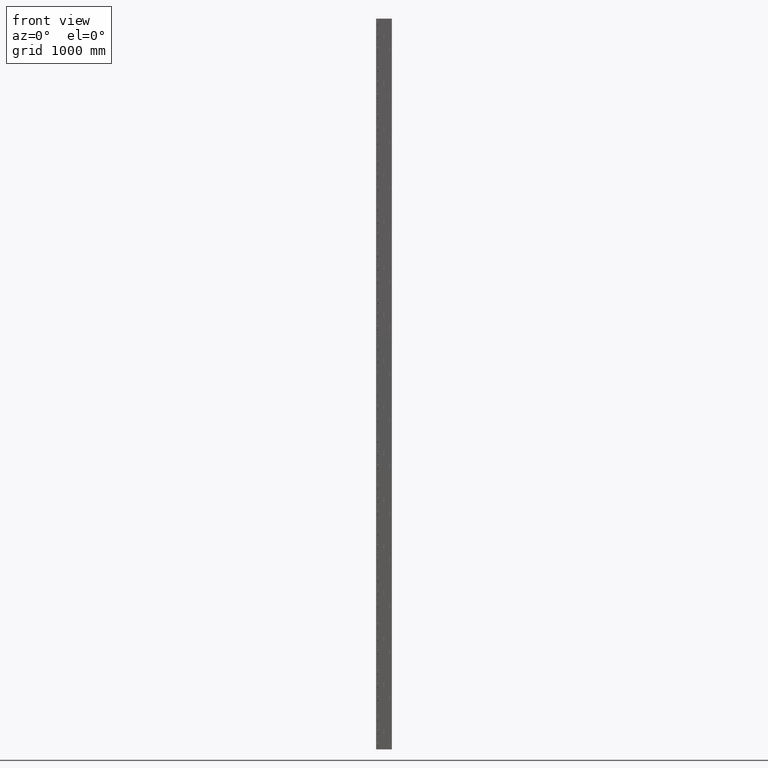
[diagram: clean part render]
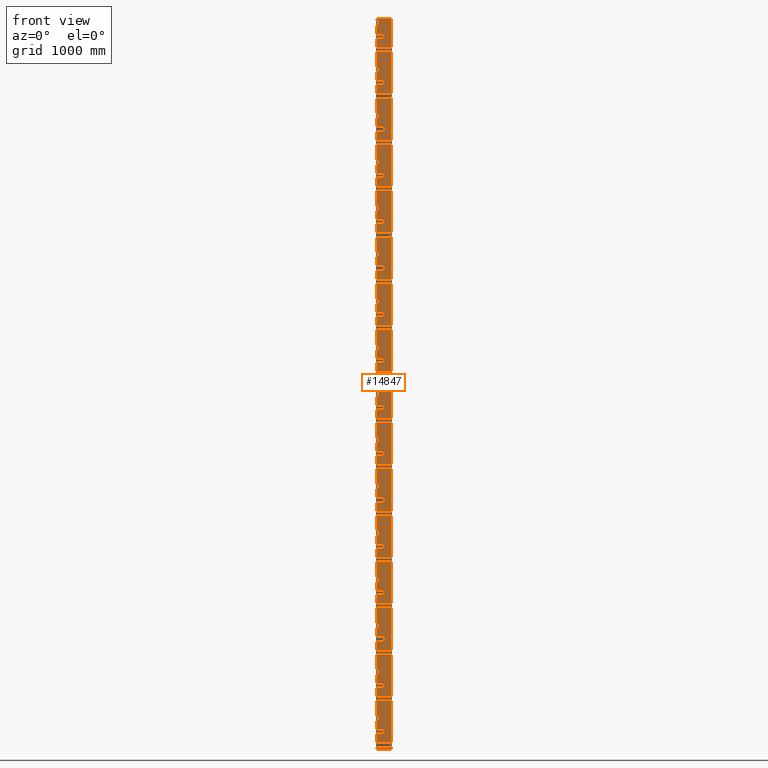
[diagram: same view with one face highlighted and labeled with its STEP entity id]
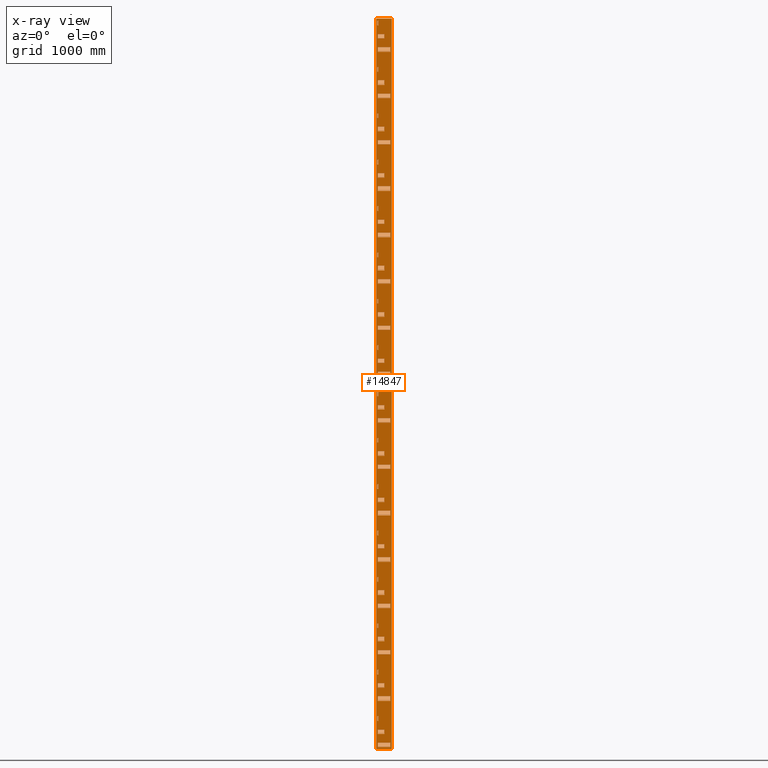
[diagram: x-ray of the same camera — body ghosted, the highlighted face saturated]
A machine part, front view. The second image highlights one B-rep face of the part: STEP entity #14847.
The next image is the same camera in x-ray: the body ghosted, the highlighted face saturated — about 0% of this face is hidden behind the body in this view.
In plain terms, the highlighted planar face has unit normal (0, -1, 0).
Its self-contained STEP definition (entity closure, byte-faithful):
#260=CARTESIAN_POINT('',(6728.0208871479363,6046.4066631202168,-9554.4999999999509));
#261=VERTEX_POINT('',#260);
#262=CARTESIAN_POINT('',(6713.0208871479354,6046.4066631202149,-9554.4999999999509));
#263=VERTEX_POINT('',#262);
#264=CARTESIAN_POINT('',(6728.0208871479363,6046.4066631202168,-9554.4999999999509));
#265=DIRECTION('',(-1.0,-3.031649E-013,0.0));
#266=VECTOR('',#265,15.000000000000909);
#267=LINE('',#264,#266);
#268=EDGE_CURVE('',#261,#263,#267,.T.);
#291=CARTESIAN_POINT('',(6728.0208871479363,6046.4066631202168,-9614.4999999999509));
#292=VERTEX_POINT('',#291);
#293=CARTESIAN_POINT('',(6728.0208871479363,6046.4066631202168,-9614.4999999999509));
#294=DIRECTION('',(0.0,0.0,1.0));
#295=VECTOR('',#294,60.0);
#296=LINE('',#293,#295);
#297=EDGE_CURVE('',#292,#261,#296,.T.);
#317=CARTESIAN_POINT('',(6713.0208871479354,6046.4066631202149,-9614.4999999999509));
#318=VERTEX_POINT('',#317);
#319=CARTESIAN_POINT('',(6713.0208871479354,6046.4066631202149,-9614.4999999999509));
#320=DIRECTION('',(1.0,3.031649E-013,0.0));
#321=VECTOR('',#320,15.000000000000909);
#322=LINE('',#319,#321);
#323=EDGE_CURVE('',#318,#292,#322,.T.);
#341=CARTESIAN_POINT('',(6713.0208871479354,6046.4066631202149,-9554.4999999999509));
#342=DIRECTION('',(0.0,0.0,-1.0));
#343=VECTOR('',#342,60.0);
#344=LINE('',#341,#343);
#345=EDGE_CURVE('',#263,#318,#344,.T.);
#360=CARTESIAN_POINT('',(6713.0208871479354,6046.4066631202149,-832.4999999999518));
#361=VERTEX_POINT('',#360);
#362=CARTESIAN_POINT('',(6713.0208871479354,6046.4066631202149,-892.49999999995316));
#363=VERTEX_POINT('',#362);
#364=CARTESIAN_POINT('',(6713.0208871479354,6046.4066631202149,-832.4999999999518));
#365=DIRECTION('',(0.0,0.0,-1.0));
#366=VECTOR('',#365,60.000000000001364);
#367=LINE('',#364,#366);
#368=EDGE_CURVE('',#361,#363,#367,.T.);
#418=CARTESIAN_POINT('',(6728.0208871479363,6046.4066631202168,-892.49999999995316));
#419=VERTEX_POINT('',#418);
#420=CARTESIAN_POINT('',(6713.0208871479354,6046.4066631202149,-892.49999999995316));
#421=DIRECTION('',(1.0,3.031649E-013,0.0));
#422=VECTOR('',#421,15.000000000000909);
#423=LINE('',#420,#422);
#424=EDGE_CURVE('',#363,#419,#423,.T.);
#449=CARTESIAN_POINT('',(6728.0208871479363,6046.4066631202168,-832.4999999999518));
#450=VERTEX_POINT('',#449);
#451=CARTESIAN_POINT('',(6728.0208871479363,6046.4066631202168,-892.49999999995316));
#452=DIRECTION('',(0.0,0.0,1.0));
#453=VECTOR('',#452,60.000000000001364);
#454=LINE('',#451,#453);
#455=EDGE_CURVE('',#419,#450,#454,.T.);
#498=CARTESIAN_POINT('',(6728.0208871479363,6046.4066631202168,-832.4999999999518));
#499=DIRECTION('',(-1.0,-3.031649E-013,0.0));
#500=VECTOR('',#499,15.000000000000909);
#501=LINE('',#498,#500);
#502=EDGE_CURVE('',#450,#361,#501,.T.);
#672=CARTESIAN_POINT('',(6728.0208871479363,6046.4066631202168,-8931.4999999999509));
#673=VERTEX_POINT('',#672);
#674=CARTESIAN_POINT('',(6713.0208871479354,6046.4066631202149,-8931.4999999999509));
#675=VERTEX_POINT('',#674);
#676=CARTESIAN_POINT('',(6728.0208871479363,6046.4066631202168,-8931.4999999999509));
#677=DIRECTION('',(-1.0,-3.031649E-013,0.0));
#678=VECTOR('',#677,15.000000000000909);
#679=LINE('',#676,#678);
#680=EDGE_CURVE('',#673,#675,#679,.T.);
#703=CARTESIAN_POINT('',(6728.0208871479363,6046.4066631202168,-8991.4999999999527));
#704=VERTEX_POINT('',#703);
#705=CARTESIAN_POINT('',(6728.0208871479363,6046.4066631202168,-8991.4999999999527));
#706=DIRECTION('',(0.0,0.0,1.0));
#707=VECTOR('',#706,60.000000000001819);
#708=LINE('',#705,#707);
#709=EDGE_CURVE('',#704,#673,#708,.T.);
#729=CARTESIAN_POINT('',(6713.0208871479354,6046.4066631202149,-8991.4999999999527));
#730=VERTEX_POINT('',#729);
#731=CARTESIAN_POINT('',(6713.0208871479354,6046.4066631202149,-8991.4999999999527));
#732=DIRECTION('',(1.0,3.031649E-013,0.0));
#733=VECTOR('',#732,15.000000000000909);
#734=LINE('',#731,#733);
#735=EDGE_CURVE('',#730,#704,#734,.T.);
#753=CARTESIAN_POINT('',(6713.0208871479354,6046.4066631202149,-8931.4999999999509));
#754=DIRECTION('',(0.0,0.0,-1.0));
#755=VECTOR('',#754,60.000000000001819);
#756=LINE('',#753,#755);
#757=EDGE_CURVE('',#675,#730,#756,.T.);
#772=CARTESIAN_POINT('',(6713.0208871479354,6046.4066631202149,-1455.4999999999509));
#773=VERTEX_POINT('',#772);
#774=CARTESIAN_POINT('',(6713.0208871479354,6046.4066631202149,-1515.499999999952));
#775=VERTEX_POINT('',#774);
#776=CARTESIAN_POINT('',(6713.0208871479354,6046.4066631202149,-1455.4999999999509));
#777=DIRECTION('',(0.0,0.0,-1.0));
#778=VECTOR('',#777,60.000000000001137);
#779=LINE('',#776,#778);
#780=EDGE_CURVE('',#773,#775,#779,.T.);
#830=CARTESIAN_POINT('',(6728.0208871479363,6046.4066631202168,-1515.499999999952));
#831=VERTEX_POINT('',#830);
#832=CARTESIAN_POINT('',(6713.0208871479354,6046.4066631202149,-1515.499999999952));
#833=DIRECTION('',(1.0,3.031649E-013,0.0));
#834=VECTOR('',#833,15.000000000000909);
#835=LINE('',#832,#834);
#836=EDGE_CURVE('',#775,#831,#835,.T.);
#861=CARTESIAN_POINT('',(6728.0208871479363,6046.4066631202168,-1455.4999999999509));
#862=VERTEX_POINT('',#861);
#863=CARTESIAN_POINT('',(6728.0208871479363,6046.4066631202168,-1515.499999999952));
#864=DIRECTION('',(0.0,0.0,1.0));
#865=VECTOR('',#864,60.000000000001137);
#866=LINE('',#863,#865);
#867=EDGE_CURVE('',#831,#862,#866,.T.);
#910=CARTESIAN_POINT('',(6728.0208871479363,6046.4066631202168,-1455.4999999999509));
#911=DIRECTION('',(-1.0,-3.031649E-013,0.0));
#912=VECTOR('',#911,15.000000000000909);
#913=LINE('',#910,#912);
#914=EDGE_CURVE('',#862,#773,#913,.T.);
#1084=CARTESIAN_POINT('',(6728.0208871479363,6046.4066631202168,-8308.4999999999527));
#1085=VERTEX_POINT('',#1084);
#1086=CARTESIAN_POINT('',(6713.0208871479354,6046.4066631202149,-8308.4999999999527));
#1087=VERTEX_POINT('',#1086);
#1088=CARTESIAN_POINT('',(6728.0208871479363,6046.4066631202168,-8308.4999999999527));
#1089=DIRECTION('',(-1.0,-3.031649E-013,0.0));
#1090=VECTOR('',#1089,15.000000000000909);
#1091=LINE('',#1088,#1090);
#1092=EDGE_CURVE('',#1085,#1087,#1091,.T.);
#1115=CARTESIAN_POINT('',(6728.0208871479363,6046.4066631202168,-8368.4999999999509));
#1116=VERTEX_POINT('',#1115);
#1117=CARTESIAN_POINT('',(6728.0208871479363,6046.4066631202168,-8368.4999999999509));
#1118=DIRECTION('',(0.0,0.0,1.0));
#1119=VECTOR('',#1118,60.0);
#1120=LINE('',#1117,#1119);
#1121=EDGE_CURVE('',#1116,#1085,#1120,.T.);
#1141=CARTESIAN_POINT('',(6713.0208871479354,6046.4066631202149,-8368.4999999999509));
#1142=VERTEX_POINT('',#1141);
#1143=CARTESIAN_POINT('',(6713.0208871479354,6046.4066631202149,-8368.4999999999509));
#1144=DIRECTION('',(1.0,3.031649E-013,0.0));
#1145=VECTOR('',#1144,15.000000000000909);
#1146=LINE('',#1143,#1145);
#1147=EDGE_CURVE('',#1142,#1116,#1146,.T.);
#1165=CARTESIAN_POINT('',(6713.0208871479354,6046.4066631202149,-8308.4999999999527));
#1166=DIRECTION('',(0.0,0.0,-1.0));
#1167=VECTOR('',#1166,60.0);
#1168=LINE('',#1165,#1167);
#1169=EDGE_CURVE('',#1087,#1142,#1168,.T.);
#1184=CARTESIAN_POINT('',(6713.0208871479354,6046.4066631202149,-2078.4999999999518));
#1185=VERTEX_POINT('',#1184);
#1186=CARTESIAN_POINT('',(6713.0208871479354,6046.4066631202149,-2138.4999999999532));
#1187=VERTEX_POINT('',#1186);
#1188=CARTESIAN_POINT('',(6713.0208871479354,6046.4066631202149,-2078.4999999999518));
#1189=DIRECTION('',(0.0,0.0,-1.0));
#1190=VECTOR('',#1189,60.000000000000909);
#1191=LINE('',#1188,#1190);
#1192=EDGE_CURVE('',#1185,#1187,#1191,.T.);
#1242=CARTESIAN_POINT('',(6728.0208871479363,6046.4066631202168,-2138.4999999999532));
#1243=VERTEX_POINT('',#1242);
#1244=CARTESIAN_POINT('',(6713.0208871479354,6046.4066631202149,-2138.4999999999532));
#1245=DIRECTION('',(1.0,3.031649E-013,0.0));
#1246=VECTOR('',#1245,15.000000000000909);
#1247=LINE('',#1244,#1246);
#1248=EDGE_CURVE('',#1187,#1243,#1247,.T.);
#1273=CARTESIAN_POINT('',(6728.0208871479363,6046.4066631202168,-2078.4999999999518));
#1274=VERTEX_POINT('',#1273);
#1275=CARTESIAN_POINT('',(6728.0208871479363,6046.4066631202168,-2138.4999999999532));
#1276=DIRECTION('',(0.0,0.0,1.0));
#1277=VECTOR('',#1276,60.000000000000909);
#1278=LINE('',#1275,#1277);
#1279=EDGE_CURVE('',#1243,#1274,#1278,.T.);
#1322=CARTESIAN_POINT('',(6728.0208871479363,6046.4066631202168,-2078.4999999999518));
#1323=DIRECTION('',(-1.0,-3.031649E-013,0.0));
#1324=VECTOR('',#1323,15.000000000000909);
#1325=LINE('',#1322,#1324);
#1326=EDGE_CURVE('',#1274,#1185,#1325,.T.);
#1496=CARTESIAN_POINT('',(6728.0208871479363,6046.4066631202168,-7685.4999999999509));
#1497=VERTEX_POINT('',#1496);
#1498=CARTESIAN_POINT('',(6713.0208871479354,6046.4066631202149,-7685.4999999999509));
#1499=VERTEX_POINT('',#1498);
#1500=CARTESIAN_POINT('',(6728.0208871479363,6046.4066631202168,-7685.4999999999509));
#1501=DIRECTION('',(-1.0,-3.031649E-013,0.0));
#1502=VECTOR('',#1501,15.000000000000909);
#1503=LINE('',#1500,#1502);
#1504=EDGE_CURVE('',#1497,#1499,#1503,.T.);
#1527=CARTESIAN_POINT('',(6728.0208871479363,6046.4066631202168,-7745.4999999999545));
#1528=VERTEX_POINT('',#1527);
#1529=CARTESIAN_POINT('',(6728.0208871479363,6046.4066631202168,-7745.4999999999545));
#1530=DIRECTION('',(0.0,0.0,1.0));
#1531=VECTOR('',#1530,60.000000000003638);
#1532=LINE('',#1529,#1531);
#1533=EDGE_CURVE('',#1528,#1497,#1532,.T.);
#1553=CARTESIAN_POINT('',(6713.0208871479354,6046.4066631202149,-7745.4999999999545));
#1554=VERTEX_POINT('',#1553);
#1555=CARTESIAN_POINT('',(6713.0208871479354,6046.4066631202149,-7745.4999999999545));
#1556=DIRECTION('',(1.0,3.031649E-013,0.0));
#1557=VECTOR('',#1556,15.000000000000909);
#1558=LINE('',#1555,#1557);
#1559=EDGE_CURVE('',#1554,#1528,#1558,.T.);
#1577=CARTESIAN_POINT('',(6713.0208871479354,6046.4066631202149,-7685.4999999999509));
#1578=DIRECTION('',(0.0,0.0,-1.0));
#1579=VECTOR('',#1578,60.000000000003638);
#1580=LINE('',#1577,#1579);
#1581=EDGE_CURVE('',#1499,#1554,#1580,.T.);
#1596=CARTESIAN_POINT('',(6713.0208871479354,6046.4066631202149,-2701.4999999999518));
#1597=VERTEX_POINT('',#1596);
#1598=CARTESIAN_POINT('',(6713.0208871479354,6046.4066631202149,-2761.4999999999527));
#1599=VERTEX_POINT('',#1598);
#1600=CARTESIAN_POINT('',(6713.0208871479354,6046.4066631202149,-2701.4999999999518));
#1601=DIRECTION('',(0.0,0.0,-1.0));
#1602=VECTOR('',#1601,60.000000000000455);
#1603=LINE('',#1600,#1602);
#1604=EDGE_CURVE('',#1597,#1599,#1603,.T.);
#1654=CARTESIAN_POINT('',(6728.0208871479363,6046.4066631202168,-2761.4999999999527));
#1655=VERTEX_POINT('',#1654);
#1656=CARTESIAN_POINT('',(6713.0208871479354,6046.4066631202149,-2761.4999999999527));
#1657=DIRECTION('',(1.0,3.031649E-013,0.0));
#1658=VECTOR('',#1657,15.000000000000909);
#1659=LINE('',#1656,#1658);
#1660=EDGE_CURVE('',#1599,#1655,#1659,.T.);
#1685=CARTESIAN_POINT('',(6728.0208871479363,6046.4066631202168,-2701.4999999999518));
#1686=VERTEX_POINT('',#1685);
#1687=CARTESIAN_POINT('',(6728.0208871479363,6046.4066631202168,-2761.4999999999527));
#1688=DIRECTION('',(0.0,0.0,1.0));
#1689=VECTOR('',#1688,60.000000000000455);
#1690=LINE('',#1687,#1689);
#1691=EDGE_CURVE('',#1655,#1686,#1690,.T.);
#1734=CARTESIAN_POINT('',(6728.0208871479363,6046.4066631202168,-2701.4999999999518));
#1735=DIRECTION('',(-1.0,-3.031649E-013,0.0));
#1736=VECTOR('',#1735,15.000000000000909);
#1737=LINE('',#1734,#1736);
#1738=EDGE_CURVE('',#1686,#1597,#1737,.T.);
#1908=CARTESIAN_POINT('',(6728.0208871479363,6046.4066631202168,-7062.4999999999527));
#1909=VERTEX_POINT('',#1908);
#1910=CARTESIAN_POINT('',(6713.0208871479354,6046.4066631202149,-7062.4999999999527));
#1911=VERTEX_POINT('',#1910);
#1912=CARTESIAN_POINT('',(6728.0208871479363,6046.4066631202168,-7062.4999999999527));
#1913=DIRECTION('',(-1.0,-3.031649E-013,0.0));
#1914=VECTOR('',#1913,15.000000000000909);
#1915=LINE('',#1912,#1914);
#1916=EDGE_CURVE('',#1909,#1911,#1915,.T.);
#1939=CARTESIAN_POINT('',(6728.0208871479363,6046.4066631202168,-7122.4999999999509));
#1940=VERTEX_POINT('',#1939);
#1941=CARTESIAN_POINT('',(6728.0208871479363,6046.4066631202168,-7122.4999999999509));
#1942=DIRECTION('',(0.0,0.0,1.0));
#1943=VECTOR('',#1942,59.999999999999091);
#1944=LINE('',#1941,#1943);
#1945=EDGE_CURVE('',#1940,#1909,#1944,.T.);
#1965=CARTESIAN_POINT('',(6713.0208871479354,6046.4066631202149,-7122.4999999999509));
#1966=VERTEX_POINT('',#1965);
#1967=CARTESIAN_POINT('',(6713.0208871479354,6046.4066631202149,-7122.4999999999509));
#1968=DIRECTION('',(1.0,3.031649E-013,0.0));
#1969=VECTOR('',#1968,15.000000000000909);
#1970=LINE('',#1967,#1969);
#1971=EDGE_CURVE('',#1966,#1940,#1970,.T.);
#1989=CARTESIAN_POINT('',(6713.0208871479354,6046.4066631202149,-7062.4999999999527));
#1990=DIRECTION('',(0.0,0.0,-1.0));
#1991=VECTOR('',#1990,59.999999999999091);
#1992=LINE('',#1989,#1991);
#1993=EDGE_CURVE('',#1911,#1966,#1992,.T.);
#2008=CARTESIAN_POINT('',(6713.0208871479354,6046.4066631202149,-3324.4999999999518));
#2009=VERTEX_POINT('',#2008);
#2010=CARTESIAN_POINT('',(6713.0208871479354,6046.4066631202149,-3384.4999999999518));
#2011=VERTEX_POINT('',#2010);
#2012=CARTESIAN_POINT('',(6713.0208871479354,6046.4066631202149,-3324.4999999999518));
#2013=DIRECTION('',(0.0,0.0,-1.0));
#2014=VECTOR('',#2013,60.0);
#2015=LINE('',#2012,#2014);
#2016=EDGE_CURVE('',#2009,#2011,#2015,.T.);
#2066=CARTESIAN_POINT('',(6728.0208871479363,6046.4066631202168,-3384.4999999999518));
#2067=VERTEX_POINT('',#2066);
#2068=CARTESIAN_POINT('',(6713.0208871479354,6046.4066631202149,-3384.4999999999518));
#2069=DIRECTION('',(1.0,3.031649E-013,0.0));
#2070=VECTOR('',#2069,15.000000000000909);
#2071=LINE('',#2068,#2070);
#2072=EDGE_CURVE('',#2011,#2067,#2071,.T.);
#2097=CARTESIAN_POINT('',(6728.0208871479363,6046.4066631202168,-3324.4999999999518));
#2098=VERTEX_POINT('',#2097);
#2099=CARTESIAN_POINT('',(6728.0208871479363,6046.4066631202168,-3384.4999999999518));
#2100=DIRECTION('',(0.0,0.0,1.0));
#2101=VECTOR('',#2100,60.0);
#2102=LINE('',#2099,#2101);
#2103=EDGE_CURVE('',#2067,#2098,#2102,.T.);
#2146=CARTESIAN_POINT('',(6728.0208871479363,6046.4066631202168,-3324.4999999999518));
#2147=DIRECTION('',(-1.0,-3.031649E-013,0.0));
#2148=VECTOR('',#2147,15.000000000000909);
#2149=LINE('',#2146,#2148);
#2150=EDGE_CURVE('',#2098,#2009,#2149,.T.);
#2320=CARTESIAN_POINT('',(6728.0208871479363,6046.4066631202168,-6439.4999999999518));
#2321=VERTEX_POINT('',#2320);
#2322=CARTESIAN_POINT('',(6713.0208871479354,6046.4066631202149,-6439.4999999999518));
#2323=VERTEX_POINT('',#2322);
#2324=CARTESIAN_POINT('',(6728.0208871479363,6046.4066631202168,-6439.4999999999518));
#2325=DIRECTION('',(-1.0,-3.031649E-013,0.0));
#2326=VECTOR('',#2325,15.000000000000909);
#2327=LINE('',#2324,#2326);
#2328=EDGE_CURVE('',#2321,#2323,#2327,.T.);
#2351=CARTESIAN_POINT('',(6728.0208871479363,6046.4066631202168,-6499.4999999999527));
#2352=VERTEX_POINT('',#2351);
#2353=CARTESIAN_POINT('',(6728.0208871479363,6046.4066631202168,-6499.4999999999527));
#2354=DIRECTION('',(0.0,0.0,1.0));
#2355=VECTOR('',#2354,60.000000000000909);
#2356=LINE('',#2353,#2355);
#2357=EDGE_CURVE('',#2352,#2321,#2356,.T.);
#2377=CARTESIAN_POINT('',(6713.0208871479354,6046.4066631202149,-6499.4999999999527));
#2378=VERTEX_POINT('',#2377);
#2379=CARTESIAN_POINT('',(6713.0208871479354,6046.4066631202149,-6499.4999999999527));
#2380=DIRECTION('',(1.0,3.031649E-013,0.0));
#2381=VECTOR('',#2380,15.000000000000909);
#2382=LINE('',#2379,#2381);
#2383=EDGE_CURVE('',#2378,#2352,#2382,.T.);
#2401=CARTESIAN_POINT('',(6713.0208871479354,6046.4066631202149,-6439.4999999999518));
#2402=DIRECTION('',(0.0,0.0,-1.0));
#2403=VECTOR('',#2402,60.000000000000909);
#2404=LINE('',#2401,#2403);
#2405=EDGE_CURVE('',#2323,#2378,#2404,.T.);
#2420=CARTESIAN_POINT('',(6713.0208871479354,6046.4066631202149,-3947.4999999999509));
#2421=VERTEX_POINT('',#2420);
#2422=CARTESIAN_POINT('',(6713.0208871479354,6046.4066631202149,-4007.4999999999509));
#2423=VERTEX_POINT('',#2422);
#2424=CARTESIAN_POINT('',(6713.0208871479354,6046.4066631202149,-3947.4999999999509));
#2425=DIRECTION('',(0.0,0.0,-1.0));
#2426=VECTOR('',#2425,60.0);
#2427=LINE('',#2424,#2426);
#2428=EDGE_CURVE('',#2421,#2423,#2427,.T.);
#2478=CARTESIAN_POINT('',(6728.0208871479363,6046.4066631202168,-4007.4999999999509));
#2479=VERTEX_POINT('',#2478);
#2480=CARTESIAN_POINT('',(6713.0208871479354,6046.4066631202149,-4007.4999999999523));
#2481=DIRECTION('',(1.0,3.031649E-013,0.0));
#2482=VECTOR('',#2481,15.000000000000909);
#2483=LINE('',#2480,#2482);
#2484=EDGE_CURVE('',#2423,#2479,#2483,.T.);
#2509=CARTESIAN_POINT('',(6728.0208871479363,6046.4066631202168,-3947.4999999999509));
#2510=VERTEX_POINT('',#2509);
#2511=CARTESIAN_POINT('',(6728.0208871479363,6046.4066631202168,-4007.4999999999509));
#2512=DIRECTION('',(0.0,0.0,1.0));
#2513=VECTOR('',#2512,60.0);
#2514=LINE('',#2511,#2513);
#2515=EDGE_CURVE('',#2479,#2510,#2514,.T.);
#2558=CARTESIAN_POINT('',(6728.0208871479363,6046.4066631202168,-3947.4999999999509));
#2559=DIRECTION('',(-1.0,-3.031649E-013,0.0));
#2560=VECTOR('',#2559,15.000000000000909);
#2561=LINE('',#2558,#2560);
#2562=EDGE_CURVE('',#2510,#2421,#2561,.T.);
#2732=CARTESIAN_POINT('',(6728.0208871479363,6046.4066631202168,-5816.4999999999518));
#2733=VERTEX_POINT('',#2732);
#2734=CARTESIAN_POINT('',(6713.0208871479354,6046.4066631202149,-5816.4999999999518));
#2735=VERTEX_POINT('',#2734);
#2736=CARTESIAN_POINT('',(6728.0208871479363,6046.4066631202168,-5816.4999999999518));
#2737=DIRECTION('',(-1.0,-3.031649E-013,0.0));
#2738=VECTOR('',#2737,15.000000000000909);
#2739=LINE('',#2736,#2738);
#2740=EDGE_CURVE('',#2733,#2735,#2739,.T.);
#2763=CARTESIAN_POINT('',(6728.0208871479363,6046.4066631202168,-5876.4999999999518));
#2764=VERTEX_POINT('',#2763);
#2765=CARTESIAN_POINT('',(6728.0208871479363,6046.4066631202168,-5876.4999999999518));
#2766=DIRECTION('',(0.0,0.0,1.0));
#2767=VECTOR('',#2766,60.0);
#2768=LINE('',#2765,#2767);
#2769=EDGE_CURVE('',#2764,#2733,#2768,.T.);
#2789=CARTESIAN_POINT('',(6713.0208871479354,6046.4066631202149,-5876.4999999999518));
#2790=VERTEX_POINT('',#2789);
#2791=CARTESIAN_POINT('',(6713.0208871479354,6046.4066631202149,-5876.4999999999518));
#2792=DIRECTION('',(1.0,3.031649E-013,0.0));
#2793=VECTOR('',#2792,15.000000000000909);
#2794=LINE('',#2791,#2793);
#2795=EDGE_CURVE('',#2790,#2764,#2794,.T.);
#2813=CARTESIAN_POINT('',(6713.0208871479354,6046.4066631202149,-5816.4999999999518));
#2814=DIRECTION('',(0.0,0.0,-1.0));
#2815=VECTOR('',#2814,60.0);
#2816=LINE('',#2813,#2815);
#2817=EDGE_CURVE('',#2735,#2790,#2816,.T.);
#2832=CARTESIAN_POINT('',(6713.0208871479354,6046.4066631202149,-4570.4999999999527));
#2833=VERTEX_POINT('',#2832);
#2834=CARTESIAN_POINT('',(6713.0208871479354,6046.4066631202149,-4630.4999999999527));
#2835=VERTEX_POINT('',#2834);
#2836=CARTESIAN_POINT('',(6713.0208871479354,6046.4066631202149,-4570.4999999999527));
#2837=DIRECTION('',(0.0,0.0,-1.0));
#2838=VECTOR('',#2837,60.0);
#2839=LINE('',#2836,#2838);
#2840=EDGE_CURVE('',#2833,#2835,#2839,.T.);
#2890=CARTESIAN_POINT('',(6728.0208871479363,6046.4066631202168,-4630.4999999999527));
#2891=VERTEX_POINT('',#2890);
#2892=CARTESIAN_POINT('',(6713.0208871479354,6046.4066631202149,-4630.4999999999527));
#2893=DIRECTION('',(1.0,3.031649E-013,0.0));
#2894=VECTOR('',#2893,15.000000000000909);
#2895=LINE('',#2892,#2894);
#2896=EDGE_CURVE('',#2835,#2891,#2895,.T.);
#2921=CARTESIAN_POINT('',(6728.0208871479363,6046.4066631202168,-4570.4999999999527));
#2922=VERTEX_POINT('',#2921);
#2923=CARTESIAN_POINT('',(6728.0208871479363,6046.4066631202168,-4630.4999999999527));
#2924=DIRECTION('',(0.0,0.0,1.0));
#2925=VECTOR('',#2924,60.0);
#2926=LINE('',#2923,#2925);
#2927=EDGE_CURVE('',#2891,#2922,#2926,.T.);
#2970=CARTESIAN_POINT('',(6728.0208871479363,6046.4066631202168,-4570.4999999999527));
#2971=DIRECTION('',(-1.0,-3.031649E-013,0.0));
#2972=VECTOR('',#2971,15.000000000000909);
#2973=LINE('',#2970,#2972);
#2974=EDGE_CURVE('',#2922,#2833,#2973,.T.);
#3144=CARTESIAN_POINT('',(6728.0208871479363,6046.4066631202168,-5193.4999999999509));
#3145=VERTEX_POINT('',#3144);
#3146=CARTESIAN_POINT('',(6713.0208871479354,6046.4066631202149,-5193.4999999999509));
#3147=VERTEX_POINT('',#3146);
#3148=CARTESIAN_POINT('',(6728.0208871479363,6046.4066631202168,-5193.4999999999509));
#3149=DIRECTION('',(-1.0,-3.031649E-013,0.0));
#3150=VECTOR('',#3149,15.000000000000909);
#3151=LINE('',#3148,#3150);
#3152=EDGE_CURVE('',#3145,#3147,#3151,.T.);
#3175=CARTESIAN_POINT('',(6728.0208871479363,6046.4066631202168,-5253.4999999999509));
#3176=VERTEX_POINT('',#3175);
#3177=CARTESIAN_POINT('',(6728.0208871479363,6046.4066631202168,-5253.4999999999509));
#3178=DIRECTION('',(0.0,0.0,1.0));
#3179=VECTOR('',#3178,59.999999999999091);
#3180=LINE('',#3177,#3179);
#3181=EDGE_CURVE('',#3176,#3145,#3180,.T.);
#3201=CARTESIAN_POINT('',(6713.0208871479354,6046.4066631202149,-5253.4999999999509));
#3202=VERTEX_POINT('',#3201);
#3203=CARTESIAN_POINT('',(6713.0208871479354,6046.4066631202149,-5253.4999999999509));
#3204=DIRECTION('',(1.0,3.031649E-013,0.0));
#3205=VECTOR('',#3204,15.000000000000909);
#3206=LINE('',#3203,#3205);
#3207=EDGE_CURVE('',#3202,#3176,#3206,.T.);
#3225=CARTESIAN_POINT('',(6713.0208871479354,6046.4066631202149,-5193.4999999999509));
#3226=DIRECTION('',(0.0,0.0,-1.0));
#3227=VECTOR('',#3226,59.999999999999091);
#3228=LINE('',#3225,#3227);
#3229=EDGE_CURVE('',#3147,#3202,#3228,.T.);
#3244=CARTESIAN_POINT('',(6728.0208871479363,6046.4066631202168,-209.49999999995163));
#3245=VERTEX_POINT('',#3244);
#3246=CARTESIAN_POINT('',(6713.0208871479354,6046.4066631202149,-209.49999999995163));
#3247=VERTEX_POINT('',#3246);
#3248=CARTESIAN_POINT('',(6728.0208871479363,6046.4066631202168,-209.49999999995163));
#3249=DIRECTION('',(-1.0,-3.031649E-013,0.0));
#3250=VECTOR('',#3249,15.000000000000909);
#3251=LINE('',#3248,#3250);
#3252=EDGE_CURVE('',#3245,#3247,#3251,.T.);
#3284=CARTESIAN_POINT('',(6728.0208871479363,6046.4066631202168,-269.49999999995282));
#3285=VERTEX_POINT('',#3284);
#3286=CARTESIAN_POINT('',(6728.0208871479363,6046.4066631202168,-269.49999999995282));
#3287=DIRECTION('',(0.0,0.0,1.0));
#3288=VECTOR('',#3287,60.000000000001165);
#3289=LINE('',#3286,#3288);
#3290=EDGE_CURVE('',#3285,#3245,#3289,.T.);
#3333=CARTESIAN_POINT('',(6713.0208871479354,6046.4066631202149,-269.49999999995282));
#3334=VERTEX_POINT('',#3333);
#3335=CARTESIAN_POINT('',(6713.0208871479354,6046.4066631202149,-209.49999999995163));
#3336=DIRECTION('',(0.0,0.0,-1.0));
#3337=VECTOR('',#3336,60.000000000001194);
#3338=LINE('',#3335,#3337);
#3339=EDGE_CURVE('',#3247,#3334,#3338,.T.);
#3433=CARTESIAN_POINT('',(6713.0208871479354,6046.4066631202149,-269.49999999995282));
#3434=DIRECTION('',(1.0,3.031649E-013,0.0));
#3435=VECTOR('',#3434,15.000000000000909);
#3436=LINE('',#3433,#3435);
#3437=EDGE_CURVE('',#3334,#3285,#3436,.T.);
#3450=CARTESIAN_POINT('',(6810.3413952236324,6046.4066631202422,-447.49999999993645));
#3451=VERTEX_POINT('',#3450);
#3452=CARTESIAN_POINT('',(6810.3413952236324,6046.4066631202422,-387.49999999993645));
#3453=VERTEX_POINT('',#3452);
#3454=CARTESIAN_POINT('',(6810.3413952236324,6046.4066631202422,-447.49999999993645));
#3455=DIRECTION('',(0.0,0.0,1.0));
#3456=VECTOR('',#3455,59.999999999999943);
#3457=LINE('',#3454,#3456);
#3458=EDGE_CURVE('',#3451,#3453,#3457,.T.);
#3637=CARTESIAN_POINT('',(6719.7921305926093,6046.4066631202159,-447.49999999993645));
#3638=VERTEX_POINT('',#3637);
#3639=CARTESIAN_POINT('',(6719.7921305926093,6046.4066631202159,-447.49999999993645));
#3640=DIRECTION('',(1.0,2.912817E-013,0.0));
#3641=VECTOR('',#3640,90.549264631024016);
#3642=LINE('',#3639,#3641);
#3643=EDGE_CURVE('',#3638,#3451,#3642,.T.);
#3748=CARTESIAN_POINT('',(6719.7921305926093,6046.4066631202159,-387.49999999993645));
#3749=VERTEX_POINT('',#3748);
#3750=CARTESIAN_POINT('',(6719.7921305926093,6046.4066631202159,-387.49999999993645));
#3751=DIRECTION('',(0.0,0.0,-1.0));
#3752=VECTOR('',#3751,59.999999999999943);
#3753=LINE('',#3750,#3752);
#3754=EDGE_CURVE('',#3749,#3638,#3753,.T.);
#3773=CARTESIAN_POINT('',(6810.3413952236324,6046.4066631202422,-387.49999999993645));
#3774=DIRECTION('',(-1.0,-2.912817E-013,0.0));
#3775=VECTOR('',#3774,90.549264631024016);
#3776=LINE('',#3773,#3775);
#3777=EDGE_CURVE('',#3453,#3749,#3776,.T.);
#3794=CARTESIAN_POINT('',(6719.7921305926093,6046.4066631202159,-1070.4999999999368));
#3795=VERTEX_POINT('',#3794);
#3796=CARTESIAN_POINT('',(6810.3413952236324,6046.4066631202422,-1070.4999999999368));
#3797=VERTEX_POINT('',#3796);
#3798=CARTESIAN_POINT('',(6719.7921305926093,6046.4066631202149,-1070.4999999999368));
#3799=DIRECTION('',(1.0,2.812375E-013,0.0));
#3800=VECTOR('',#3799,90.549264631024016);
#3801=LINE('',#3798,#3800);
#3802=EDGE_CURVE('',#3795,#3797,#3801,.T.);
#3869=CARTESIAN_POINT('',(6810.3413952236324,6046.4066631202422,-1010.4999999999364));
#3870=VERTEX_POINT('',#3869);
#3871=CARTESIAN_POINT('',(6810.3413952236324,6046.4066631202422,-1070.4999999999368));
#3872=DIRECTION('',(0.0,0.0,1.0));
#3873=VECTOR('',#3872,60.000000000000341);
#3874=LINE('',#3871,#3873);
#3875=EDGE_CURVE('',#3797,#3870,#3874,.T.);
#4007=CARTESIAN_POINT('',(6719.7921305926093,6046.4066631202159,-1010.4999999999364));
#4008=VERTEX_POINT('',#4007);
#4009=CARTESIAN_POINT('',(6810.3413952236324,6046.4066631202422,-1010.4999999999364));
#4010=DIRECTION('',(-1.0,-2.912817E-013,0.0));
#4011=VECTOR('',#4010,90.549264631024016);
#4012=LINE('',#4009,#4011);
#4013=EDGE_CURVE('',#3870,#4008,#4012,.T.);
#4078=CARTESIAN_POINT('',(6719.7921305926093,6046.4066631202159,-1010.4999999999364));
#4079=DIRECTION('',(0.0,0.0,-1.0));
#4080=VECTOR('',#4079,60.000000000000341);
#4081=LINE('',#4078,#4080);
#4082=EDGE_CURVE('',#4008,#3795,#4081,.T.);
#4267=CARTESIAN_POINT('',(6719.792130592612,6046.4066631202159,-9732.4999999999382));
#4268=VERTEX_POINT('',#4267);
#4269=CARTESIAN_POINT('',(6719.792130592612,6046.4066631202159,-9792.4999999999382));
#4270=VERTEX_POINT('',#4269);
#4271=CARTESIAN_POINT('',(6719.792130592612,6046.4066631202159,-9732.4999999999382));
#4272=DIRECTION('',(0.0,0.0,-1.0));
#4273=VECTOR('',#4272,60.0);
#4274=LINE('',#4271,#4273);
#4275=EDGE_CURVE('',#4268,#4270,#4274,.T.);
#4333=CARTESIAN_POINT('',(6810.3413952236351,6046.4066631202422,-9732.4999999999382));
#4334=VERTEX_POINT('',#4333);
#4335=CARTESIAN_POINT('',(6810.3413952236351,6046.4066631202422,-9732.4999999999382));
#4336=DIRECTION('',(-1.0,-2.912817E-013,0.0));
#4337=VECTOR('',#4336,90.549264631024016);
#4338=LINE('',#4335,#4337);
#4339=EDGE_CURVE('',#4334,#4268,#4338,.T.);
#4436=CARTESIAN_POINT('',(6810.3413952236351,6046.4066631202422,-9792.4999999999382));
#4437=VERTEX_POINT('',#4436);
#4438=CARTESIAN_POINT('',(6810.3413952236351,6046.4066631202422,-9792.4999999999382));
#4439=DIRECTION('',(0.0,0.0,1.0));
#4440=VECTOR('',#4439,60.0);
#4441=LINE('',#4438,#4440);
#4442=EDGE_CURVE('',#4437,#4334,#4441,.T.);
#4461=CARTESIAN_POINT('',(6719.792130592612,6046.4066631202149,-9792.4999999999382));
#4462=DIRECTION('',(1.0,2.812375E-013,0.0));
#4463=VECTOR('',#4462,90.549264631024016);
#4464=LINE('',#4461,#4463);
#4465=EDGE_CURVE('',#4270,#4437,#4464,.T.);
#4482=CARTESIAN_POINT('',(6719.7921305926093,6046.4066631202159,-1693.4999999999372));
#4483=VERTEX_POINT('',#4482);
#4484=CARTESIAN_POINT('',(6810.3413952236324,6046.4066631202422,-1693.4999999999372));
#4485=VERTEX_POINT('',#4484);
#4486=CARTESIAN_POINT('',(6719.7921305926093,6046.4066631202159,-1693.4999999999372));
#4487=DIRECTION('',(1.0,2.912817E-013,0.0));
#4488=VECTOR('',#4487,90.549264631024016);
#4489=LINE('',#4486,#4488);
#4490=EDGE_CURVE('',#4483,#4485,#4489,.T.);
#4557=CARTESIAN_POINT('',(6810.3413952236324,6046.4066631202422,-1633.4999999999366));
#4558=VERTEX_POINT('',#4557);
#4559=CARTESIAN_POINT('',(6810.3413952236324,6046.4066631202422,-1693.4999999999372));
#4560=DIRECTION('',(0.0,0.0,1.0));
#4561=VECTOR('',#4560,60.000000000000455);
#4562=LINE('',#4559,#4561);
#4563=EDGE_CURVE('',#4485,#4558,#4562,.T.);
#4695=CARTESIAN_POINT('',(6719.7921305926093,6046.4066631202159,-1633.4999999999366));
#4696=VERTEX_POINT('',#4695);
#4697=CARTESIAN_POINT('',(6810.3413952236324,6046.4066631202422,-1633.4999999999366));
#4698=DIRECTION('',(-1.0,-2.912817E-013,0.0));
#4699=VECTOR('',#4698,90.549264631024016);
#4700=LINE('',#4697,#4699);
#4701=EDGE_CURVE('',#4558,#4696,#4700,.T.);
#4766=CARTESIAN_POINT('',(6719.7921305926093,6046.4066631202159,-1633.4999999999366));
#4767=DIRECTION('',(0.0,0.0,-1.0));
#4768=VECTOR('',#4767,60.000000000000455);
#4769=LINE('',#4766,#4768);
#4770=EDGE_CURVE('',#4696,#4483,#4769,.T.);
#4955=CARTESIAN_POINT('',(6719.7921305926093,6046.4066631202159,-2256.4999999999368));
#4956=VERTEX_POINT('',#4955);
#4957=CARTESIAN_POINT('',(6719.7921305926093,6046.4066631202159,-2316.4999999999368));
#4958=VERTEX_POINT('',#4957);
#4959=CARTESIAN_POINT('',(6719.7921305926093,6046.4066631202159,-2256.4999999999368));
#4960=DIRECTION('',(0.0,0.0,-1.0));
#4961=VECTOR('',#4960,60.0);
#4962=LINE('',#4959,#4961);
#4963=EDGE_CURVE('',#4956,#4958,#4962,.T.);
#5021=CARTESIAN_POINT('',(6810.3413952236324,6046.4066631202422,-2256.4999999999372));
#5022=VERTEX_POINT('',#5021);
#5023=CARTESIAN_POINT('',(6810.3413952236324,6046.4066631202422,-2256.4999999999368));
#5024=DIRECTION('',(-1.0,-2.912817E-013,0.0));
#5025=VECTOR('',#5024,90.549264631024016);
#5026=LINE('',#5023,#5025);
#5027=EDGE_CURVE('',#5022,#4956,#5026,.T.);
#5124=CARTESIAN_POINT('',(6810.3413952236324,6046.4066631202422,-2316.4999999999372));
#5125=VERTEX_POINT('',#5124);
#5126=CARTESIAN_POINT('',(6810.3413952236324,6046.4066631202422,-2316.4999999999372));
#5127=DIRECTION('',(0.0,0.0,1.0));
#5128=VECTOR('',#5127,60.0);
#5129=LINE('',#5126,#5128);
#5130=EDGE_CURVE('',#5125,#5022,#5129,.T.);
#5149=CARTESIAN_POINT('',(6719.7921305926093,6046.4066631202159,-2316.4999999999372));
#5150=DIRECTION('',(1.0,2.912817E-013,0.0));
#5151=VECTOR('',#5150,90.549264631024016);
#5152=LINE('',#5149,#5151);
#5153=EDGE_CURVE('',#4958,#5125,#5152,.T.);
#5170=CARTESIAN_POINT('',(6719.7921305926093,6046.4066631202159,-2939.4999999999368));
#5171=VERTEX_POINT('',#5170);
#5172=CARTESIAN_POINT('',(6810.3413952236324,6046.4066631202422,-2939.4999999999368));
#5173=VERTEX_POINT('',#5172);
#5174=CARTESIAN_POINT('',(6719.7921305926093,6046.4066631202159,-2939.4999999999368));
#5175=DIRECTION('',(1.0,2.912817E-013,0.0));
#5176=VECTOR('',#5175,90.549264631024016);
#5177=LINE('',#5174,#5176);
#5178=EDGE_CURVE('',#5171,#5173,#5177,.T.);
#5245=CARTESIAN_POINT('',(6810.3413952236324,6046.4066631202422,-2879.4999999999368));
#5246=VERTEX_POINT('',#5245);
#5247=CARTESIAN_POINT('',(6810.3413952236324,6046.4066631202422,-2939.4999999999368));
#5248=DIRECTION('',(0.0,0.0,1.0));
#5249=VECTOR('',#5248,60.0);
#5250=LINE('',#5247,#5249);
#5251=EDGE_CURVE('',#5173,#5246,#5250,.T.);
#5383=CARTESIAN_POINT('',(6719.7921305926093,6046.4066631202159,-2879.4999999999368));
#5384=VERTEX_POINT('',#5383);
#5385=CARTESIAN_POINT('',(6810.3413952236324,6046.4066631202422,-2879.4999999999368));
#5386=DIRECTION('',(-1.0,-2.912817E-013,0.0));
#5387=VECTOR('',#5386,90.549264631024016);
#5388=LINE('',#5385,#5387);
#5389=EDGE_CURVE('',#5246,#5384,#5388,.T.);
#5454=CARTESIAN_POINT('',(6719.7921305926093,6046.4066631202159,-2879.4999999999368));
#5455=DIRECTION('',(0.0,0.0,-1.0));
#5456=VECTOR('',#5455,60.0);
#5457=LINE('',#5454,#5456);
#5458=EDGE_CURVE('',#5384,#5171,#5457,.T.);
#5643=CARTESIAN_POINT('',(6719.7921305926093,6046.4066631202159,-3502.4999999999359));
#5644=VERTEX_POINT('',#5643);
#5645=CARTESIAN_POINT('',(6719.7921305926093,6046.4066631202159,-3562.4999999999368));
#5646=VERTEX_POINT('',#5645);
#5647=CARTESIAN_POINT('',(6719.7921305926093,6046.4066631202159,-3502.4999999999359));
#5648=DIRECTION('',(0.0,0.0,-1.0));
#5649=VECTOR('',#5648,60.000000000000909);
#5650=LINE('',#5647,#5649);
#5651=EDGE_CURVE('',#5644,#5646,#5650,.T.);
#5709=CARTESIAN_POINT('',(6810.3413952236324,6046.4066631202422,-3502.4999999999359));
#5710=VERTEX_POINT('',#5709);
#5711=CARTESIAN_POINT('',(6810.3413952236324,6046.4066631202413,-3502.4999999999359));
#5712=DIRECTION('',(-1.0,-2.912817E-013,0.0));
#5713=VECTOR('',#5712,90.549264631024016);
#5714=LINE('',#5711,#5713);
#5715=EDGE_CURVE('',#5710,#5644,#5714,.T.);
#5812=CARTESIAN_POINT('',(6810.3413952236324,6046.4066631202422,-3562.4999999999368));
#5813=VERTEX_POINT('',#5812);
#5814=CARTESIAN_POINT('',(6810.3413952236324,6046.4066631202422,-3562.4999999999368));
#5815=DIRECTION('',(0.0,0.0,1.0));
#5816=VECTOR('',#5815,60.000000000000909);
#5817=LINE('',#5814,#5816);
#5818=EDGE_CURVE('',#5813,#5710,#5817,.T.);
#5837=CARTESIAN_POINT('',(6719.7921305926093,6046.4066631202159,-3562.4999999999368));
#5838=DIRECTION('',(1.0,2.912817E-013,0.0));
#5839=VECTOR('',#5838,90.549264631024016);
#5840=LINE('',#5837,#5839);
#5841=EDGE_CURVE('',#5646,#5813,#5840,.T.);
#5858=CARTESIAN_POINT('',(6719.7921305926093,6046.4066631202159,-4185.4999999999372));
#5859=VERTEX_POINT('',#5858);
#5860=CARTESIAN_POINT('',(6810.3413952236324,6046.4066631202422,-4185.4999999999372));
#5861=VERTEX_POINT('',#5860);
#5862=CARTESIAN_POINT('',(6719.7921305926093,6046.4066631202159,-4185.4999999999372));
#5863=DIRECTION('',(1.0,2.912817E-013,0.0));
#5864=VECTOR('',#5863,90.549264631024016);
#5865=LINE('',#5862,#5864);
#5866=EDGE_CURVE('',#5859,#5861,#5865,.T.);
#5933=CARTESIAN_POINT('',(6810.3413952236324,6046.4066631202422,-4125.4999999999372));
#5934=VERTEX_POINT('',#5933);
#5935=CARTESIAN_POINT('',(6810.3413952236324,6046.4066631202422,-4185.4999999999372));
#5936=DIRECTION('',(0.0,0.0,1.0));
#5937=VECTOR('',#5936,60.0);
#5938=LINE('',#5935,#5937);
#5939=EDGE_CURVE('',#5861,#5934,#5938,.T.);
#6071=CARTESIAN_POINT('',(6719.7921305926093,6046.4066631202159,-4125.4999999999372));
#6072=VERTEX_POINT('',#6071);
#6073=CARTESIAN_POINT('',(6810.3413952236324,6046.4066631202413,-4125.4999999999372));
#6074=DIRECTION('',(-1.0,-2.912817E-013,0.0));
#6075=VECTOR('',#6074,90.549264631024016);
#6076=LINE('',#6073,#6075);
#6077=EDGE_CURVE('',#5934,#6072,#6076,.T.);
#6142=CARTESIAN_POINT('',(6719.7921305926093,6046.4066631202159,-4125.4999999999372));
#6143=DIRECTION('',(0.0,0.0,-1.0));
#6144=VECTOR('',#6143,60.0);
#6145=LINE('',#6142,#6144);
#6146=EDGE_CURVE('',#6072,#5859,#6145,.T.);
#6331=CARTESIAN_POINT('',(6719.7921305926102,6046.4066631202159,-4748.4999999999363));
#6332=VERTEX_POINT('',#6331);
#6333=CARTESIAN_POINT('',(6719.7921305926102,6046.4066631202159,-4808.4999999999363));
#6334=VERTEX_POINT('',#6333);
#6335=CARTESIAN_POINT('',(6719.7921305926102,6046.4066631202159,-4748.4999999999363));
#6336=DIRECTION('',(0.0,0.0,-1.0));
#6337=VECTOR('',#6336,60.0);
#6338=LINE('',#6335,#6337);
#6339=EDGE_CURVE('',#6332,#6334,#6338,.T.);
#6397=CARTESIAN_POINT('',(6810.3413952236333,6046.4066631202422,-4748.4999999999363));
#6398=VERTEX_POINT('',#6397);
#6399=CARTESIAN_POINT('',(6810.3413952236333,6046.4066631202422,-4748.4999999999363));
#6400=DIRECTION('',(-1.0,-2.912817E-013,0.0));
#6401=VECTOR('',#6400,90.549264631024016);
#6402=LINE('',#6399,#6401);
#6403=EDGE_CURVE('',#6398,#6332,#6402,.T.);
#6500=CARTESIAN_POINT('',(6810.3413952236333,6046.4066631202422,-4808.4999999999363));
#6501=VERTEX_POINT('',#6500);
#6502=CARTESIAN_POINT('',(6810.3413952236333,6046.4066631202422,-4808.4999999999363));
#6503=DIRECTION('',(0.0,0.0,1.0));
#6504=VECTOR('',#6503,60.0);
#6505=LINE('',#6502,#6504);
#6506=EDGE_CURVE('',#6501,#6398,#6505,.T.);
#6525=CARTESIAN_POINT('',(6719.7921305926102,6046.4066631202159,-4808.4999999999363));
#6526=DIRECTION('',(1.0,2.912817E-013,0.0));
#6527=VECTOR('',#6526,90.549264631024016);
#6528=LINE('',#6525,#6527);
#6529=EDGE_CURVE('',#6334,#6501,#6528,.T.);
#6546=CARTESIAN_POINT('',(6719.7921305926102,6046.4066631202159,-5431.4999999999372));
#6547=VERTEX_POINT('',#6546);
#6548=CARTESIAN_POINT('',(6810.3413952236333,6046.4066631202422,-5431.4999999999372));
#6549=VERTEX_POINT('',#6548);
#6550=CARTESIAN_POINT('',(6719.7921305926102,6046.4066631202149,-5431.4999999999372));
#6551=DIRECTION('',(1.0,2.812375E-013,0.0));
#6552=VECTOR('',#6551,90.549264631024016);
#6553=LINE('',#6550,#6552);
#6554=EDGE_CURVE('',#6547,#6549,#6553,.T.);
#6621=CARTESIAN_POINT('',(6810.3413952236333,6046.4066631202422,-5371.4999999999372));
#6622=VERTEX_POINT('',#6621);
#6623=CARTESIAN_POINT('',(6810.3413952236333,6046.4066631202422,-5431.4999999999372));
#6624=DIRECTION('',(0.0,0.0,1.0));
#6625=VECTOR('',#6624,59.999999999999091);
#6626=LINE('',#6623,#6625);
#6627=EDGE_CURVE('',#6549,#6622,#6626,.T.);
#6759=CARTESIAN_POINT('',(6719.7921305926102,6046.4066631202159,-5371.4999999999372));
#6760=VERTEX_POINT('',#6759);
#6761=CARTESIAN_POINT('',(6810.3413952236333,6046.4066631202422,-5371.4999999999372));
#6762=DIRECTION('',(-1.0,-2.912817E-013,0.0));
#6763=VECTOR('',#6762,90.549264631024016);
#6764=LINE('',#6761,#6763);
#6765=EDGE_CURVE('',#6622,#6760,#6764,.T.);
#6830=CARTESIAN_POINT('',(6719.7921305926102,6046.4066631202159,-5371.4999999999372));
#6831=DIRECTION('',(0.0,0.0,-1.0));
#6832=VECTOR('',#6831,59.999999999999091);
#6833=LINE('',#6830,#6832);
#6834=EDGE_CURVE('',#6760,#6547,#6833,.T.);
#7019=CARTESIAN_POINT('',(6719.7921305926102,6046.4066631202159,-5994.4999999999363));
#7020=VERTEX_POINT('',#7019);
#7021=CARTESIAN_POINT('',(6719.7921305926102,6046.4066631202159,-6054.4999999999363));
#7022=VERTEX_POINT('',#7021);
#7023=CARTESIAN_POINT('',(6719.7921305926102,6046.4066631202159,-5994.4999999999363));
#7024=DIRECTION('',(0.0,0.0,-1.0));
#7025=VECTOR('',#7024,60.0);
#7026=LINE('',#7023,#7025);
#7027=EDGE_CURVE('',#7020,#7022,#7026,.T.);
#7085=CARTESIAN_POINT('',(6810.3413952236333,6046.4066631202422,-5994.4999999999363));
#7086=VERTEX_POINT('',#7085);
#7087=CARTESIAN_POINT('',(6810.3413952236333,6046.4066631202422,-5994.4999999999363));
#7088=DIRECTION('',(-1.0,-2.912817E-013,0.0));
#7089=VECTOR('',#7088,90.549264631024016);
#7090=LINE('',#7087,#7089);
#7091=EDGE_CURVE('',#7086,#7020,#7090,.T.);
#7188=CARTESIAN_POINT('',(6810.3413952236333,6046.4066631202422,-6054.4999999999363));
#7189=VERTEX_POINT('',#7188);
#7190=CARTESIAN_POINT('',(6810.3413952236333,6046.4066631202422,-6054.4999999999363));
#7191=DIRECTION('',(0.0,0.0,1.0));
#7192=VECTOR('',#7191,60.0);
#7193=LINE('',#7190,#7192);
#7194=EDGE_CURVE('',#7189,#7086,#7193,.T.);
#7213=CARTESIAN_POINT('',(6719.7921305926102,6046.4066631202159,-6054.4999999999363));
#7214=DIRECTION('',(1.0,2.912817E-013,0.0));
#7215=VECTOR('',#7214,90.549264631024016);
#7216=LINE('',#7213,#7215);
#7217=EDGE_CURVE('',#7022,#7189,#7216,.T.);
#7234=CARTESIAN_POINT('',(6719.7921305926102,6046.4066631202159,-6677.4999999999363));
#7235=VERTEX_POINT('',#7234);
#7236=CARTESIAN_POINT('',(6810.3413952236333,6046.4066631202422,-6677.4999999999363));
#7237=VERTEX_POINT('',#7236);
#7238=CARTESIAN_POINT('',(6719.7921305926102,6046.4066631202159,-6677.4999999999363));
#7239=DIRECTION('',(1.0,2.912817E-013,0.0));
#7240=VECTOR('',#7239,90.549264631024016);
#7241=LINE('',#7238,#7240);
#7242=EDGE_CURVE('',#7235,#7237,#7241,.T.);
#7309=CARTESIAN_POINT('',(6810.3413952236333,6046.4066631202422,-6617.4999999999372));
#7310=VERTEX_POINT('',#7309);
#7311=CARTESIAN_POINT('',(6810.3413952236333,6046.4066631202422,-6677.4999999999363));
#7312=DIRECTION('',(0.0,0.0,1.0));
#7313=VECTOR('',#7312,59.999999999999091);
#7314=LINE('',#7311,#7313);
#7315=EDGE_CURVE('',#7237,#7310,#7314,.T.);
#7447=CARTESIAN_POINT('',(6719.7921305926102,6046.4066631202159,-6617.4999999999372));
#7448=VERTEX_POINT('',#7447);
#7449=CARTESIAN_POINT('',(6810.3413952236333,6046.4066631202422,-6617.4999999999372));
#7450=DIRECTION('',(-1.0,-2.912817E-013,0.0));
#7451=VECTOR('',#7450,90.549264631024016);
#7452=LINE('',#7449,#7451);
#7453=EDGE_CURVE('',#7310,#7448,#7452,.T.);
#7518=CARTESIAN_POINT('',(6719.7921305926102,6046.4066631202159,-6617.4999999999372));
#7519=DIRECTION('',(0.0,0.0,-1.0));
#7520=VECTOR('',#7519,59.999999999999091);
#7521=LINE('',#7518,#7520);
#7522=EDGE_CURVE('',#7448,#7235,#7521,.T.);
#7707=CARTESIAN_POINT('',(6719.792130592612,6046.4066631202159,-7240.4999999999363));
#7708=VERTEX_POINT('',#7707);
#7709=CARTESIAN_POINT('',(6719.792130592612,6046.4066631202159,-7300.4999999999363));
#7710=VERTEX_POINT('',#7709);
#7711=CARTESIAN_POINT('',(6719.792130592612,6046.4066631202159,-7240.4999999999363));
#7712=DIRECTION('',(0.0,0.0,-1.0));
#7713=VECTOR('',#7712,59.999999999999091);
#7714=LINE('',#7711,#7713);
#7715=EDGE_CURVE('',#7708,#7710,#7714,.T.);
#7773=CARTESIAN_POINT('',(6810.3413952236333,6046.4066631202422,-7240.4999999999363));
#7774=VERTEX_POINT('',#7773);
#7775=CARTESIAN_POINT('',(6810.3413952236333,6046.4066631202422,-7240.4999999999363));
#7776=DIRECTION('',(-1.0,-2.912817E-013,0.0));
#7777=VECTOR('',#7776,90.549264631022197);
#7778=LINE('',#7775,#7777);
#7779=EDGE_CURVE('',#7774,#7708,#7778,.T.);
#7876=CARTESIAN_POINT('',(6810.3413952236333,6046.4066631202422,-7300.4999999999363));
#7877=VERTEX_POINT('',#7876);
#7878=CARTESIAN_POINT('',(6810.3413952236333,6046.4066631202422,-7300.4999999999363));
#7879=DIRECTION('',(0.0,0.0,1.0));
#7880=VECTOR('',#7879,59.999999999999091);
#7881=LINE('',#7878,#7880);
#7882=EDGE_CURVE('',#7877,#7774,#7881,.T.);
#7901=CARTESIAN_POINT('',(6719.792130592612,6046.4066631202159,-7300.4999999999363));
#7902=DIRECTION('',(1.0,2.912817E-013,0.0));
#7903=VECTOR('',#7902,90.549264631022197);
#7904=LINE('',#7901,#7903);
#7905=EDGE_CURVE('',#7710,#7877,#7904,.T.);
#7922=CARTESIAN_POINT('',(6719.792130592612,6046.4066631202159,-7923.4999999999345));
#7923=VERTEX_POINT('',#7922);
#7924=CARTESIAN_POINT('',(6810.3413952236351,6046.4066631202422,-7923.4999999999345));
#7925=VERTEX_POINT('',#7924);
#7926=CARTESIAN_POINT('',(6719.792130592612,6046.4066631202159,-7923.4999999999345));
#7927=DIRECTION('',(1.0,2.912817E-013,0.0));
#7928=VECTOR('',#7927,90.549264631024016);
#7929=LINE('',#7926,#7928);
#7930=EDGE_CURVE('',#7923,#7925,#7929,.T.);
#7997=CARTESIAN_POINT('',(6810.3413952236351,6046.4066631202422,-7863.4999999999363));
#7998=VERTEX_POINT('',#7997);
#7999=CARTESIAN_POINT('',(6810.3413952236351,6046.4066631202422,-7923.4999999999345));
#8000=DIRECTION('',(0.0,0.0,1.0));
#8001=VECTOR('',#8000,59.999999999998181);
#8002=LINE('',#7999,#8001);
#8003=EDGE_CURVE('',#7925,#7998,#8002,.T.);
#8135=CARTESIAN_POINT('',(6719.792130592612,6046.4066631202159,-7863.4999999999363));
#8136=VERTEX_POINT('',#8135);
#8137=CARTESIAN_POINT('',(6810.3413952236351,6046.4066631202413,-7863.4999999999363));
#8138=DIRECTION('',(-1.0,-2.912817E-013,0.0));
#8139=VECTOR('',#8138,90.549264631024016);
#8140=LINE('',#8137,#8139);
#8141=EDGE_CURVE('',#7998,#8136,#8140,.T.);
#8206=CARTESIAN_POINT('',(6719.792130592612,6046.4066631202159,-7863.4999999999363));
#8207=DIRECTION('',(0.0,0.0,-1.0));
#8208=VECTOR('',#8207,59.999999999998181);
#8209=LINE('',#8206,#8208);
#8210=EDGE_CURVE('',#8136,#7923,#8209,.T.);
#8395=CARTESIAN_POINT('',(6719.792130592612,6046.4066631202159,-8486.4999999999382));
#8396=VERTEX_POINT('',#8395);
#8397=CARTESIAN_POINT('',(6719.792130592612,6046.4066631202159,-8546.49999999994));
#8398=VERTEX_POINT('',#8397);
#8399=CARTESIAN_POINT('',(6719.792130592612,6046.4066631202159,-8486.4999999999382));
#8400=DIRECTION('',(0.0,0.0,-1.0));
#8401=VECTOR('',#8400,60.0);
#8402=LINE('',#8399,#8401);
#8403=EDGE_CURVE('',#8396,#8398,#8402,.T.);
#8461=CARTESIAN_POINT('',(6810.3413952236351,6046.4066631202422,-8486.4999999999382));
#8462=VERTEX_POINT('',#8461);
#8463=CARTESIAN_POINT('',(6810.3413952236351,6046.4066631202413,-8486.4999999999382));
#8464=DIRECTION('',(-1.0,-2.912817E-013,0.0));
#8465=VECTOR('',#8464,90.549264631024016);
#8466=LINE('',#8463,#8465);
#8467=EDGE_CURVE('',#8462,#8396,#8466,.T.);
#8564=CARTESIAN_POINT('',(6810.3413952236351,6046.4066631202422,-8546.49999999994));
#8565=VERTEX_POINT('',#8564);
#8566=CARTESIAN_POINT('',(6810.3413952236351,6046.4066631202422,-8546.49999999994));
#8567=DIRECTION('',(0.0,0.0,1.0));
#8568=VECTOR('',#8567,60.0);
#8569=LINE('',#8566,#8568);
#8570=EDGE_CURVE('',#8565,#8462,#8569,.T.);
#8589=CARTESIAN_POINT('',(6719.792130592612,6046.4066631202159,-8546.49999999994));
#8590=DIRECTION('',(1.0,2.912817E-013,0.0));
#8591=VECTOR('',#8590,90.549264631024016);
#8592=LINE('',#8589,#8591);
#8593=EDGE_CURVE('',#8398,#8565,#8592,.T.);
#8610=CARTESIAN_POINT('',(6719.792130592612,6046.4066631202159,-9169.4999999999382));
#8611=VERTEX_POINT('',#8610);
#8612=CARTESIAN_POINT('',(6810.3413952236351,6046.4066631202422,-9169.4999999999382));
#8613=VERTEX_POINT('',#8612);
#8614=CARTESIAN_POINT('',(6719.792130592612,6046.4066631202159,-9169.4999999999382));
#8615=DIRECTION('',(1.0,2.912817E-013,0.0));
#8616=VECTOR('',#8615,90.549264631024016);
#8617=LINE('',#8614,#8616);
#8618=EDGE_CURVE('',#8611,#8613,#8617,.T.);
#8685=CARTESIAN_POINT('',(6810.3413952236351,6046.4066631202422,-9109.4999999999382));
#8686=VERTEX_POINT('',#8685);
#8687=CARTESIAN_POINT('',(6810.3413952236351,6046.4066631202422,-9169.4999999999382));
#8688=DIRECTION('',(0.0,0.0,1.0));
#8689=VECTOR('',#8688,60.0);
#8690=LINE('',#8687,#8689);
#8691=EDGE_CURVE('',#8613,#8686,#8690,.T.);
#8823=CARTESIAN_POINT('',(6719.792130592612,6046.4066631202159,-9109.4999999999382));
#8824=VERTEX_POINT('',#8823);
#8825=CARTESIAN_POINT('',(6810.3413952236351,6046.4066631202422,-9109.4999999999382));
#8826=DIRECTION('',(-1.0,-2.912817E-013,0.0));
#8827=VECTOR('',#8826,90.549264631024016);
#8828=LINE('',#8825,#8827);
#8829=EDGE_CURVE('',#8686,#8824,#8828,.T.);
#8894=CARTESIAN_POINT('',(6719.792130592612,6046.4066631202159,-9109.4999999999382));
#8895=DIRECTION('',(0.0,0.0,-1.0));
#8896=VECTOR('',#8895,60.0);
#8897=LINE('',#8894,#8896);
#8898=EDGE_CURVE('',#8824,#8611,#8897,.T.);
#8954=CARTESIAN_POINT('',(6890.3413952235715,6046.4066631202641,-625.49999999994066));
#8955=VERTEX_POINT('',#8954);
#8956=CARTESIAN_POINT('',(6890.3413952235715,6046.4066631202641,-565.49999999994066));
#8957=VERTEX_POINT('',#8956);
#8958=CARTESIAN_POINT('',(6890.3413952235715,6046.4066631202641,-625.49999999994066));
#8959=DIRECTION('',(0.0,0.0,1.0));
#8960=VECTOR('',#8959,60.0);
#8961=LINE('',#8958,#8960);
#8962=EDGE_CURVE('',#8955,#8957,#8961,.T.);
#9141=CARTESIAN_POINT('',(6719.7921305924665,6046.4066631202159,-625.49999999994066));
#9142=VERTEX_POINT('',#9141);
#9143=CARTESIAN_POINT('',(6719.7921305924665,6046.4066631202159,-625.49999999994066));
#9144=DIRECTION('',(1.0,2.879679E-013,0.0));
#9145=VECTOR('',#9144,170.54926463110405);
#9146=LINE('',#9143,#9145);
#9147=EDGE_CURVE('',#9142,#8955,#9146,.T.);
#9252=CARTESIAN_POINT('',(6719.7921305924638,6046.4066631202159,-565.49999999994066));
#9253=VERTEX_POINT('',#9252);
#9254=CARTESIAN_POINT('',(6719.7921305924665,6046.4066631202159,-565.49999999994066));
#9255=DIRECTION('',(0.0,0.0,-1.0));
#9256=VECTOR('',#9255,60.0);
#9257=LINE('',#9254,#9256);
#9258=EDGE_CURVE('',#9253,#9142,#9257,.T.);
#9277=CARTESIAN_POINT('',(6890.3413952235715,6046.4066631202641,-565.49999999994066));
#9278=DIRECTION('',(-1.0,-2.879679E-013,0.0));
#9279=VECTOR('',#9278,170.54926463110678);
#9280=LINE('',#9277,#9279);
#9281=EDGE_CURVE('',#8957,#9253,#9280,.T.);
#9298=CARTESIAN_POINT('',(6719.7921305924665,6046.4066631202159,-1248.4999999999404));
#9299=VERTEX_POINT('',#9298);
#9300=CARTESIAN_POINT('',(6890.3413952235715,6046.4066631202641,-1248.4999999999404));
#9301=VERTEX_POINT('',#9300);
#9302=CARTESIAN_POINT('',(6719.7921305924665,6046.4066631202159,-1248.4999999999404));
#9303=DIRECTION('',(1.0,2.879679E-013,0.0));
#9304=VECTOR('',#9303,170.54926463110405);
#9305=LINE('',#9302,#9304);
#9306=EDGE_CURVE('',#9299,#9301,#9305,.T.);
#9373=CARTESIAN_POINT('',(6890.3413952235715,6046.4066631202641,-1188.4999999999409));
#9374=VERTEX_POINT('',#9373);
#9375=CARTESIAN_POINT('',(6890.3413952235715,6046.4066631202641,-1248.4999999999404));
#9376=DIRECTION('',(0.0,0.0,1.0));
#9377=VECTOR('',#9376,59.999999999999545);
#9378=LINE('',#9375,#9377);
#9379=EDGE_CURVE('',#9301,#9374,#9378,.T.);
#9511=CARTESIAN_POINT('',(6719.7921305924665,6046.4066631202159,-1188.4999999999409));
#9512=VERTEX_POINT('',#9511);
#9513=CARTESIAN_POINT('',(6890.3413952235715,6046.4066631202641,-1188.4999999999409));
#9514=DIRECTION('',(-1.0,-2.879679E-013,0.0));
#9515=VECTOR('',#9514,170.54926463110405);
#9516=LINE('',#9513,#9515);
#9517=EDGE_CURVE('',#9374,#9512,#9516,.T.);
#9582=CARTESIAN_POINT('',(6719.7921305924665,6046.4066631202159,-1188.4999999999409));
#9583=DIRECTION('',(0.0,0.0,-1.0));
#9584=VECTOR('',#9583,59.999999999999545);
#9585=LINE('',#9582,#9584);
#9586=EDGE_CURVE('',#9512,#9299,#9585,.T.);
#9771=CARTESIAN_POINT('',(6719.7921305924738,6046.4066631202159,-9910.49999999994));
#9772=VERTEX_POINT('',#9771);
#9773=CARTESIAN_POINT('',(6719.7921305924738,6046.4066631202159,-9970.4999999999382));
#9774=VERTEX_POINT('',#9773);
#9775=CARTESIAN_POINT('',(6719.7921305924738,6046.4066631202159,-9910.49999999994));
#9776=DIRECTION('',(0.0,0.0,-1.0));
#9777=VECTOR('',#9776,60.0);
#9778=LINE('',#9775,#9777);
#9779=EDGE_CURVE('',#9772,#9774,#9778,.T.);
#9837=CARTESIAN_POINT('',(6890.3413952235751,6046.4066631202641,-9910.49999999994));
#9838=VERTEX_POINT('',#9837);
#9839=CARTESIAN_POINT('',(6890.3413952235751,6046.4066631202641,-9910.49999999994));
#9840=DIRECTION('',(-1.0,-2.879679E-013,0.0));
#9841=VECTOR('',#9840,170.54926463110132);
#9842=LINE('',#9839,#9841);
#9843=EDGE_CURVE('',#9838,#9772,#9842,.T.);
#9940=CARTESIAN_POINT('',(6890.3413952235751,6046.4066631202641,-9970.4999999999382));
#9941=VERTEX_POINT('',#9940);
#9942=CARTESIAN_POINT('',(6890.3413952235751,6046.4066631202641,-9970.4999999999382));
#9943=DIRECTION('',(0.0,0.0,1.0));
#9944=VECTOR('',#9943,60.0);
#9945=LINE('',#9942,#9944);
#9946=EDGE_CURVE('',#9941,#9838,#9945,.T.);
#9965=CARTESIAN_POINT('',(6719.7921305924738,6046.4066631202159,-9970.4999999999382));
#9966=DIRECTION('',(1.0,2.879679E-013,0.0));
#9967=VECTOR('',#9966,170.54926463110132);
#9968=LINE('',#9965,#9967);
#9969=EDGE_CURVE('',#9774,#9941,#9968,.T.);
#9986=CARTESIAN_POINT('',(6719.7921305924665,6046.4066631202159,-1871.4999999999413));
#9987=VERTEX_POINT('',#9986);
#9988=CARTESIAN_POINT('',(6890.3413952235715,6046.4066631202641,-1871.4999999999413));
#9989=VERTEX_POINT('',#9988);
#9990=CARTESIAN_POINT('',(6719.7921305924665,6046.4066631202159,-1871.4999999999413));
#9991=DIRECTION('',(1.0,2.879679E-013,0.0));
#9992=VECTOR('',#9991,170.54926463110405);
#9993=LINE('',#9990,#9992);
#9994=EDGE_CURVE('',#9987,#9989,#9993,.T.);
#10061=CARTESIAN_POINT('',(6890.3413952235715,6046.4066631202641,-1811.4999999999413));
#10062=VERTEX_POINT('',#10061);
#10063=CARTESIAN_POINT('',(6890.3413952235715,6046.4066631202641,-1871.4999999999413));
#10064=DIRECTION('',(0.0,0.0,1.0));
#10065=VECTOR('',#10064,60.000000000000227);
#10066=LINE('',#10063,#10065);
#10067=EDGE_CURVE('',#9989,#10062,#10066,.T.);
#10199=CARTESIAN_POINT('',(6719.7921305924665,6046.4066631202159,-1811.4999999999413));
#10200=VERTEX_POINT('',#10199);
#10201=CARTESIAN_POINT('',(6890.3413952235715,6046.4066631202641,-1811.4999999999413));
#10202=DIRECTION('',(-1.0,-2.879679E-013,0.0));
#10203=VECTOR('',#10202,170.54926463110405);
#10204=LINE('',#10201,#10203);
#10205=EDGE_CURVE('',#10062,#10200,#10204,.T.);
#10270=CARTESIAN_POINT('',(6719.7921305924665,6046.4066631202159,-1811.4999999999413));
#10271=DIRECTION('',(0.0,0.0,-1.0));
#10272=VECTOR('',#10271,60.000000000000227);
#10273=LINE('',#10270,#10272);
#10274=EDGE_CURVE('',#10200,#9987,#10273,.T.);
#10459=CARTESIAN_POINT('',(6719.7921305924665,6046.4066631202159,-2434.4999999999409));
#10460=VERTEX_POINT('',#10459);
#10461=CARTESIAN_POINT('',(6719.7921305924665,6046.4066631202159,-2494.4999999999409));
#10462=VERTEX_POINT('',#10461);
#10463=CARTESIAN_POINT('',(6719.7921305924665,6046.4066631202159,-2434.4999999999409));
#10464=DIRECTION('',(0.0,0.0,-1.0));
#10465=VECTOR('',#10464,60.0);
#10466=LINE('',#10463,#10465);
#10467=EDGE_CURVE('',#10460,#10462,#10466,.T.);
#10525=CARTESIAN_POINT('',(6890.3413952235715,6046.4066631202641,-2434.4999999999409));
#10526=VERTEX_POINT('',#10525);
#10527=CARTESIAN_POINT('',(6890.3413952235715,6046.4066631202641,-2434.4999999999409));
#10528=DIRECTION('',(-1.0,-2.879679E-013,0.0));
#10529=VECTOR('',#10528,170.54926463110405);
#10530=LINE('',#10527,#10529);
#10531=EDGE_CURVE('',#10526,#10460,#10530,.T.);
#10628=CARTESIAN_POINT('',(6890.3413952235715,6046.4066631202641,-2494.4999999999409));
#10629=VERTEX_POINT('',#10628);
#10630=CARTESIAN_POINT('',(6890.3413952235715,6046.4066631202641,-2494.4999999999409));
#10631=DIRECTION('',(0.0,0.0,1.0));
#10632=VECTOR('',#10631,60.0);
#10633=LINE('',#10630,#10632);
#10634=EDGE_CURVE('',#10629,#10526,#10633,.T.);
#10653=CARTESIAN_POINT('',(6719.7921305924665,6046.4066631202159,-2494.4999999999409));
#10654=DIRECTION('',(1.0,2.879679E-013,0.0));
#10655=VECTOR('',#10654,170.54926463110405);
#10656=LINE('',#10653,#10655);
#10657=EDGE_CURVE('',#10462,#10629,#10656,.T.);
#10674=CARTESIAN_POINT('',(6719.7921305924683,6046.4066631202159,-3117.4999999999409));
#10675=VERTEX_POINT('',#10674);
#10676=CARTESIAN_POINT('',(6890.3413952235715,6046.4066631202641,-3117.4999999999409));
#10677=VERTEX_POINT('',#10676);
#10678=CARTESIAN_POINT('',(6719.7921305924683,6046.4066631202159,-3117.4999999999409));
#10679=DIRECTION('',(1.0,2.879679E-013,0.0));
#10680=VECTOR('',#10679,170.54926463110314);
#10681=LINE('',#10678,#10680);
#10682=EDGE_CURVE('',#10675,#10677,#10681,.T.);
#10749=CARTESIAN_POINT('',(6890.3413952235715,6046.4066631202641,-3057.4999999999409));
#10750=VERTEX_POINT('',#10749);
#10751=CARTESIAN_POINT('',(6890.3413952235715,6046.4066631202641,-3117.4999999999409));
#10752=DIRECTION('',(0.0,0.0,1.0));
#10753=VECTOR('',#10752,60.0);
#10754=LINE('',#10751,#10753);
#10755=EDGE_CURVE('',#10677,#10750,#10754,.T.);
#10887=CARTESIAN_POINT('',(6719.7921305924683,6046.4066631202159,-3057.4999999999409));
#10888=VERTEX_POINT('',#10887);
#10889=CARTESIAN_POINT('',(6890.3413952235715,6046.4066631202641,-3057.4999999999409));
#10890=DIRECTION('',(-1.0,-2.879679E-013,0.0));
#10891=VECTOR('',#10890,170.54926463110314);
#10892=LINE('',#10889,#10891);
#10893=EDGE_CURVE('',#10750,#10888,#10892,.T.);
#10958=CARTESIAN_POINT('',(6719.7921305924683,6046.4066631202159,-3057.4999999999409));
#10959=DIRECTION('',(0.0,0.0,-1.0));
#10960=VECTOR('',#10959,60.0);
#10961=LINE('',#10958,#10960);
#10962=EDGE_CURVE('',#10888,#10675,#10961,.T.);
#11147=CARTESIAN_POINT('',(6719.7921305924683,6046.4066631202159,-3680.4999999999409));
#11148=VERTEX_POINT('',#11147);
#11149=CARTESIAN_POINT('',(6719.7921305924683,6046.4066631202159,-3740.4999999999409));
#11150=VERTEX_POINT('',#11149);
#11151=CARTESIAN_POINT('',(6719.7921305924683,6046.4066631202159,-3680.4999999999409));
#11152=DIRECTION('',(0.0,0.0,-1.0));
#11153=VECTOR('',#11152,60.0);
#11154=LINE('',#11151,#11153);
#11155=EDGE_CURVE('',#11148,#11150,#11154,.T.);
#11213=CARTESIAN_POINT('',(6890.3413952235715,6046.4066631202641,-3680.4999999999409));
#11214=VERTEX_POINT('',#11213);
#11215=CARTESIAN_POINT('',(6890.3413952235715,6046.4066631202641,-3680.4999999999409));
#11216=DIRECTION('',(-1.0,-2.879679E-013,0.0));
#11217=VECTOR('',#11216,170.54926463110314);
#11218=LINE('',#11215,#11217);
#11219=EDGE_CURVE('',#11214,#11148,#11218,.T.);
#11316=CARTESIAN_POINT('',(6890.3413952235715,6046.4066631202641,-3740.4999999999409));
#11317=VERTEX_POINT('',#11316);
#11318=CARTESIAN_POINT('',(6890.3413952235715,6046.4066631202641,-3740.4999999999409));
#11319=DIRECTION('',(0.0,0.0,1.0));
#11320=VECTOR('',#11319,60.0);
#11321=LINE('',#11318,#11320);
#11322=EDGE_CURVE('',#11317,#11214,#11321,.T.);
#11341=CARTESIAN_POINT('',(6719.7921305924683,6046.4066631202159,-3740.4999999999409));
#11342=DIRECTION('',(1.0,2.879679E-013,0.0));
#11343=VECTOR('',#11342,170.54926463110314);
#11344=LINE('',#11341,#11343);
#11345=EDGE_CURVE('',#11150,#11317,#11344,.T.);
#11362=CARTESIAN_POINT('',(6719.7921305924683,6046.4066631202159,-4363.49999999994));
#11363=VERTEX_POINT('',#11362);
#11364=CARTESIAN_POINT('',(6890.3413952235715,6046.4066631202641,-4363.49999999994));
#11365=VERTEX_POINT('',#11364);
#11366=CARTESIAN_POINT('',(6719.7921305924683,6046.4066631202149,-4363.49999999994));
#11367=DIRECTION('',(1.0,2.826352E-013,0.0));
#11368=VECTOR('',#11367,170.54926463110314);
#11369=LINE('',#11366,#11368);
#11370=EDGE_CURVE('',#11363,#11365,#11369,.T.);
#11437=CARTESIAN_POINT('',(6890.3413952235715,6046.4066631202641,-4303.49999999994));
#11438=VERTEX_POINT('',#11437);
#11439=CARTESIAN_POINT('',(6890.3413952235715,6046.4066631202641,-4363.49999999994));
#11440=DIRECTION('',(0.0,0.0,1.0));
#11441=VECTOR('',#11440,60.0);
#11442=LINE('',#11439,#11441);
#11443=EDGE_CURVE('',#11365,#11438,#11442,.T.);
#11575=CARTESIAN_POINT('',(6719.7921305924683,6046.4066631202159,-4303.49999999994));
#11576=VERTEX_POINT('',#11575);
#11577=CARTESIAN_POINT('',(6890.3413952235715,6046.4066631202641,-4303.49999999994));
#11578=DIRECTION('',(-1.0,-2.879679E-013,0.0));
#11579=VECTOR('',#11578,170.54926463110314);
#11580=LINE('',#11577,#11579);
#11581=EDGE_CURVE('',#11438,#11576,#11580,.T.);
#11646=CARTESIAN_POINT('',(6719.7921305924683,6046.4066631202159,-4303.49999999994));
#11647=DIRECTION('',(0.0,0.0,-1.0));
#11648=VECTOR('',#11647,60.0);
#11649=LINE('',#11646,#11648);
#11650=EDGE_CURVE('',#11576,#11363,#11649,.T.);
#11835=CARTESIAN_POINT('',(6719.7921305924683,6046.4066631202159,-4926.4999999999409));
#11836=VERTEX_POINT('',#11835);
#11837=CARTESIAN_POINT('',(6719.7921305924683,6046.4066631202159,-4986.4999999999409));
#11838=VERTEX_POINT('',#11837);
#11839=CARTESIAN_POINT('',(6719.7921305924683,6046.4066631202159,-4926.4999999999409));
#11840=DIRECTION('',(0.0,0.0,-1.0));
#11841=VECTOR('',#11840,60.0);
#11842=LINE('',#11839,#11841);
#11843=EDGE_CURVE('',#11836,#11838,#11842,.T.);
#11901=CARTESIAN_POINT('',(6890.3413952235715,6046.4066631202641,-4926.4999999999409));
#11902=VERTEX_POINT('',#11901);
#11903=CARTESIAN_POINT('',(6890.3413952235715,6046.4066631202641,-4926.4999999999409));
#11904=DIRECTION('',(-1.0,-2.879679E-013,0.0));
#11905=VECTOR('',#11904,170.54926463110314);
#11906=LINE('',#11903,#11905);
#11907=EDGE_CURVE('',#11902,#11836,#11906,.T.);
#12004=CARTESIAN_POINT('',(6890.3413952235715,6046.4066631202641,-4986.4999999999409));
#12005=VERTEX_POINT('',#12004);
#12006=CARTESIAN_POINT('',(6890.3413952235715,6046.4066631202641,-4986.4999999999409));
#12007=DIRECTION('',(0.0,0.0,1.0));
#12008=VECTOR('',#12007,60.0);
#12009=LINE('',#12006,#12008);
#12010=EDGE_CURVE('',#12005,#11902,#12009,.T.);
#12029=CARTESIAN_POINT('',(6719.7921305924683,6046.4066631202149,-4986.4999999999409));
#12030=DIRECTION('',(1.0,2.826352E-013,0.0));
#12031=VECTOR('',#12030,170.54926463110314);
#12032=LINE('',#12029,#12031);
#12033=EDGE_CURVE('',#11838,#12005,#12032,.T.);
#12050=CARTESIAN_POINT('',(6719.7921305924683,6046.4066631202159,-5609.49999999994));
#12051=VERTEX_POINT('',#12050);
#12052=CARTESIAN_POINT('',(6890.3413952235733,6046.4066631202641,-5609.49999999994));
#12053=VERTEX_POINT('',#12052);
#12054=CARTESIAN_POINT('',(6719.7921305924683,6046.4066631202159,-5609.49999999994));
#12055=DIRECTION('',(1.0,2.879679E-013,0.0));
#12056=VECTOR('',#12055,170.54926463110587);
#12057=LINE('',#12054,#12056);
#12058=EDGE_CURVE('',#12051,#12053,#12057,.T.);
#12125=CARTESIAN_POINT('',(6890.3413952235733,6046.4066631202641,-5549.4999999999418));
#12126=VERTEX_POINT('',#12125);
#12127=CARTESIAN_POINT('',(6890.3413952235733,6046.4066631202641,-5609.49999999994));
#12128=DIRECTION('',(0.0,0.0,1.0));
#12129=VECTOR('',#12128,59.999999999999091);
#12130=LINE('',#12127,#12129);
#12131=EDGE_CURVE('',#12053,#12126,#12130,.T.);
#12263=CARTESIAN_POINT('',(6719.7921305924683,6046.4066631202159,-5549.4999999999418));
#12264=VERTEX_POINT('',#12263);
#12265=CARTESIAN_POINT('',(6890.3413952235733,6046.4066631202641,-5549.4999999999418));
#12266=DIRECTION('',(-1.0,-2.879679E-013,0.0));
#12267=VECTOR('',#12266,170.54926463110587);
#12268=LINE('',#12265,#12267);
#12269=EDGE_CURVE('',#12126,#12264,#12268,.T.);
#12334=CARTESIAN_POINT('',(6719.7921305924683,6046.4066631202159,-5549.4999999999418));
#12335=DIRECTION('',(0.0,0.0,-1.0));
#12336=VECTOR('',#12335,59.999999999999091);
#12337=LINE('',#12334,#12336);
#12338=EDGE_CURVE('',#12264,#12051,#12337,.T.);
#12523=CARTESIAN_POINT('',(6719.7921305924683,6046.4066631202159,-6172.49999999994));
#12524=VERTEX_POINT('',#12523);
#12525=CARTESIAN_POINT('',(6719.7921305924683,6046.4066631202159,-6232.4999999999418));
#12526=VERTEX_POINT('',#12525);
#12527=CARTESIAN_POINT('',(6719.7921305924683,6046.4066631202159,-6172.49999999994));
#12528=DIRECTION('',(0.0,0.0,-1.0));
#12529=VECTOR('',#12528,60.000000000001819);
#12530=LINE('',#12527,#12529);
#12531=EDGE_CURVE('',#12524,#12526,#12530,.T.);
#12589=CARTESIAN_POINT('',(6890.3413952235733,6046.4066631202641,-6172.49999999994));
#12590=VERTEX_POINT('',#12589);
#12591=CARTESIAN_POINT('',(6890.3413952235733,6046.4066631202641,-6172.49999999994));
#12592=DIRECTION('',(-1.0,-2.879679E-013,0.0));
#12593=VECTOR('',#12592,170.54926463110587);
#12594=LINE('',#12591,#12593);
#12595=EDGE_CURVE('',#12590,#12524,#12594,.T.);
#12692=CARTESIAN_POINT('',(6890.3413952235733,6046.4066631202641,-6232.4999999999418));
#12693=VERTEX_POINT('',#12692);
#12694=CARTESIAN_POINT('',(6890.3413952235733,6046.4066631202641,-6232.4999999999418));
#12695=DIRECTION('',(0.0,0.0,1.0));
#12696=VECTOR('',#12695,60.000000000001819);
#12697=LINE('',#12694,#12696);
#12698=EDGE_CURVE('',#12693,#12590,#12697,.T.);
#12717=CARTESIAN_POINT('',(6719.7921305924683,6046.4066631202159,-6232.4999999999418));
#12718=DIRECTION('',(1.0,2.879679E-013,0.0));
#12719=VECTOR('',#12718,170.54926463110587);
#12720=LINE('',#12717,#12719);
#12721=EDGE_CURVE('',#12526,#12693,#12720,.T.);
#12738=CARTESIAN_POINT('',(6719.7921305924701,6046.4066631202159,-6855.49999999994));
#12739=VERTEX_POINT('',#12738);
#12740=CARTESIAN_POINT('',(6890.3413952235733,6046.4066631202641,-6855.49999999994));
#12741=VERTEX_POINT('',#12740);
#12742=CARTESIAN_POINT('',(6719.7921305924701,6046.4066631202159,-6855.49999999994));
#12743=DIRECTION('',(1.0,2.879679E-013,0.0));
#12744=VECTOR('',#12743,170.54926463110314);
#12745=LINE('',#12742,#12744);
#12746=EDGE_CURVE('',#12739,#12741,#12745,.T.);
#12813=CARTESIAN_POINT('',(6890.3413952235733,6046.4066631202641,-6795.4999999999418));
#12814=VERTEX_POINT('',#12813);
#12815=CARTESIAN_POINT('',(6890.3413952235733,6046.4066631202641,-6855.49999999994));
#12816=DIRECTION('',(0.0,0.0,1.0));
#12817=VECTOR('',#12816,59.999999999999091);
#12818=LINE('',#12815,#12817);
#12819=EDGE_CURVE('',#12741,#12814,#12818,.T.);
#12951=CARTESIAN_POINT('',(6719.7921305924701,6046.4066631202159,-6795.4999999999418));
#12952=VERTEX_POINT('',#12951);
#12953=CARTESIAN_POINT('',(6890.3413952235733,6046.4066631202641,-6795.4999999999418));
#12954=DIRECTION('',(-1.0,-2.879679E-013,0.0));
#12955=VECTOR('',#12954,170.54926463110314);
#12956=LINE('',#12953,#12955);
#12957=EDGE_CURVE('',#12814,#12952,#12956,.T.);
#13022=CARTESIAN_POINT('',(6719.7921305924701,6046.4066631202159,-6795.4999999999418));
#13023=DIRECTION('',(0.0,0.0,-1.0));
#13024=VECTOR('',#13023,59.999999999999091);
#13025=LINE('',#13022,#13024);
#13026=EDGE_CURVE('',#12952,#12739,#13025,.T.);
#13211=CARTESIAN_POINT('',(6719.7921305924701,6046.4066631202159,-7418.49999999994));
#13212=VERTEX_POINT('',#13211);
#13213=CARTESIAN_POINT('',(6719.7921305924701,6046.4066631202159,-7478.49999999994));
#13214=VERTEX_POINT('',#13213);
#13215=CARTESIAN_POINT('',(6719.7921305924701,6046.4066631202159,-7418.49999999994));
#13216=DIRECTION('',(0.0,0.0,-1.0));
#13217=VECTOR('',#13216,59.999999999999091);
#13218=LINE('',#13215,#13217);
#13219=EDGE_CURVE('',#13212,#13214,#13218,.T.);
#13277=CARTESIAN_POINT('',(6890.3413952235733,6046.4066631202641,-7418.49999999994));
#13278=VERTEX_POINT('',#13277);
#13279=CARTESIAN_POINT('',(6890.3413952235733,6046.4066631202641,-7418.49999999994));
#13280=DIRECTION('',(-1.0,-2.879679E-013,0.0));
#13281=VECTOR('',#13280,170.54926463110314);
#13282=LINE('',#13279,#13281);
#13283=EDGE_CURVE('',#13278,#13212,#13282,.T.);
#13380=CARTESIAN_POINT('',(6890.3413952235733,6046.4066631202641,-7478.49999999994));
#13381=VERTEX_POINT('',#13380);
#13382=CARTESIAN_POINT('',(6890.3413952235733,6046.4066631202641,-7478.49999999994));
#13383=DIRECTION('',(0.0,0.0,1.0));
#13384=VECTOR('',#13383,59.999999999999091);
#13385=LINE('',#13382,#13384);
#13386=EDGE_CURVE('',#13381,#13278,#13385,.T.);
#13405=CARTESIAN_POINT('',(6719.7921305924701,6046.4066631202159,-7478.49999999994));
#13406=DIRECTION('',(1.0,2.879679E-013,0.0));
#13407=VECTOR('',#13406,170.54926463110314);
#13408=LINE('',#13405,#13407);
#13409=EDGE_CURVE('',#13214,#13381,#13408,.T.);
#13426=CARTESIAN_POINT('',(6719.7921305924701,6046.4066631202159,-8101.4999999999409));
#13427=VERTEX_POINT('',#13426);
#13428=CARTESIAN_POINT('',(6890.3413952235733,6046.4066631202641,-8101.4999999999409));
#13429=VERTEX_POINT('',#13428);
#13430=CARTESIAN_POINT('',(6719.7921305924701,6046.4066631202159,-8101.4999999999409));
#13431=DIRECTION('',(1.0,2.879679E-013,0.0));
#13432=VECTOR('',#13431,170.54926463110314);
#13433=LINE('',#13430,#13432);
#13434=EDGE_CURVE('',#13427,#13429,#13433,.T.);
#13501=CARTESIAN_POINT('',(6890.3413952235733,6046.4066631202641,-8041.49999999994));
#13502=VERTEX_POINT('',#13501);
#13503=CARTESIAN_POINT('',(6890.3413952235733,6046.4066631202641,-8101.4999999999409));
#13504=DIRECTION('',(0.0,0.0,1.0));
#13505=VECTOR('',#13504,60.000000000000909);
#13506=LINE('',#13503,#13505);
#13507=EDGE_CURVE('',#13429,#13502,#13506,.T.);
#13639=CARTESIAN_POINT('',(6719.7921305924701,6046.4066631202159,-8041.49999999994));
#13640=VERTEX_POINT('',#13639);
#13641=CARTESIAN_POINT('',(6890.3413952235733,6046.4066631202641,-8041.49999999994));
#13642=DIRECTION('',(-1.0,-2.879679E-013,0.0));
#13643=VECTOR('',#13642,170.54926463110314);
#13644=LINE('',#13641,#13643);
#13645=EDGE_CURVE('',#13502,#13640,#13644,.T.);
#13710=CARTESIAN_POINT('',(6719.7921305924701,6046.4066631202159,-8041.49999999994));
#13711=DIRECTION('',(0.0,0.0,-1.0));
#13712=VECTOR('',#13711,60.000000000000909);
#13713=LINE('',#13710,#13712);
#13714=EDGE_CURVE('',#13640,#13427,#13713,.T.);
#13899=CARTESIAN_POINT('',(6719.7921305924738,6046.4066631202159,-8664.4999999999418));
#13900=VERTEX_POINT('',#13899);
#13901=CARTESIAN_POINT('',(6719.7921305924738,6046.4066631202159,-8724.4999999999418));
#13902=VERTEX_POINT('',#13901);
#13903=CARTESIAN_POINT('',(6719.7921305924738,6046.4066631202159,-8664.4999999999418));
#13904=DIRECTION('',(0.0,0.0,-1.0));
#13905=VECTOR('',#13904,60.0);
#13906=LINE('',#13903,#13905);
#13907=EDGE_CURVE('',#13900,#13902,#13906,.T.);
#13965=CARTESIAN_POINT('',(6890.3413952235733,6046.4066631202641,-8664.4999999999418));
#13966=VERTEX_POINT('',#13965);
#13967=CARTESIAN_POINT('',(6890.3413952235733,6046.4066631202641,-8664.4999999999418));
#13968=DIRECTION('',(-1.0,-2.879679E-013,0.0));
#13969=VECTOR('',#13968,170.54926463110041);
#13970=LINE('',#13967,#13969);
#13971=EDGE_CURVE('',#13966,#13900,#13970,.T.);
#14068=CARTESIAN_POINT('',(6890.3413952235733,6046.4066631202641,-8724.4999999999418));
#14069=VERTEX_POINT('',#14068);
#14070=CARTESIAN_POINT('',(6890.3413952235733,6046.4066631202641,-8724.4999999999418));
#14071=DIRECTION('',(0.0,0.0,1.0));
#14072=VECTOR('',#14071,60.0);
#14073=LINE('',#14070,#14072);
#14074=EDGE_CURVE('',#14069,#13966,#14073,.T.);
#14093=CARTESIAN_POINT('',(6719.7921305924738,6046.4066631202149,-8724.4999999999418));
#14094=DIRECTION('',(1.0,2.826352E-013,0.0));
#14095=VECTOR('',#14094,170.54926463110041);
#14096=LINE('',#14093,#14095);
#14097=EDGE_CURVE('',#13902,#14069,#14096,.T.);
#14114=CARTESIAN_POINT('',(6719.7921305924738,6046.4066631202159,-9347.49999999994));
#14115=VERTEX_POINT('',#14114);
#14116=CARTESIAN_POINT('',(6890.3413952235733,6046.4066631202641,-9347.49999999994));
#14117=VERTEX_POINT('',#14116);
#14118=CARTESIAN_POINT('',(6719.7921305924738,6046.4066631202149,-9347.49999999994));
#14119=DIRECTION('',(1.0,2.826352E-013,0.0));
#14120=VECTOR('',#14119,170.54926463110041);
#14121=LINE('',#14118,#14120);
#14122=EDGE_CURVE('',#14115,#14117,#14121,.T.);
#14189=CARTESIAN_POINT('',(6890.3413952235733,6046.4066631202641,-9287.4999999999418));
#14190=VERTEX_POINT('',#14189);
#14191=CARTESIAN_POINT('',(6890.3413952235733,6046.4066631202641,-9347.49999999994));
#14192=DIRECTION('',(0.0,0.0,1.0));
#14193=VECTOR('',#14192,60.0);
#14194=LINE('',#14191,#14193);
#14195=EDGE_CURVE('',#14117,#14190,#14194,.T.);
#14327=CARTESIAN_POINT('',(6719.7921305924738,6046.4066631202159,-9287.4999999999418));
#14328=VERTEX_POINT('',#14327);
#14329=CARTESIAN_POINT('',(6890.3413952235733,6046.4066631202641,-9287.4999999999418));
#14330=DIRECTION('',(-1.0,-2.879679E-013,0.0));
#14331=VECTOR('',#14330,170.54926463110041);
#14332=LINE('',#14329,#14331);
#14333=EDGE_CURVE('',#14190,#14328,#14332,.T.);
#14398=CARTESIAN_POINT('',(6719.7921305924738,6046.4066631202159,-9287.4999999999418));
#14399=DIRECTION('',(0.0,0.0,-1.0));
#14400=VECTOR('',#14399,60.0);
#14401=LINE('',#14398,#14400);
#14402=EDGE_CURVE('',#14328,#14115,#14401,.T.);
#14458=CARTESIAN_POINT('',(6701.0208871468076,6046.4066631202095,-10000.0));
#14459=VERTEX_POINT('',#14458);
#14460=CARTESIAN_POINT('',(6907.0208871468167,6046.4066631202568,-10000.0));
#14461=VERTEX_POINT('',#14460);
#14462=CARTESIAN_POINT('',(6701.0208871468076,6046.4066631201786,-10000.0));
#14463=DIRECTION('',(1.0,3.796920E-013,0.0));
#14464=VECTOR('',#14463,206.00000000000909);
#14465=LINE('',#14462,#14464);
#14466=EDGE_CURVE('',#14459,#14461,#14465,.T.);
#14529=CARTESIAN_POINT('',(6698.0208871468094,6046.4066631202095,0.0));
#14530=DIRECTION('',(0.0,-1.0,0.0));
#14531=DIRECTION('',(0.0,0.0,-1.0));
#14532=AXIS2_PLACEMENT_3D('',#14529,#14530,#14531);
#14533=PLANE('',#14532);
#14534=CARTESIAN_POINT('',(6907.0208871468167,6046.4066631202568,-180.0));
#14535=VERTEX_POINT('',#14534);
#14536=CARTESIAN_POINT('',(6701.0208871468076,6046.4066631202095,-180.0));
#14537=VERTEX_POINT('',#14536);
#14538=CARTESIAN_POINT('',(6907.0208871468167,6046.4066631202313,-180.0));
#14539=DIRECTION('',(-1.0,0.0,0.0));
#14540=VECTOR('',#14539,206.00000000000909);
#14541=LINE('',#14538,#14540);
#14542=EDGE_CURVE('',#14535,#14537,#14541,.T.);
#14543=ORIENTED_EDGE('',*,*,#14542,.T.);
#14544=CARTESIAN_POINT('',(6701.0208871468076,6046.4066631202095,-10000.0));
#14545=DIRECTION('',(0.0,0.0,1.0));
#14546=VECTOR('',#14545,9820.0);
#14547=LINE('',#14544,#14546);
#14548=EDGE_CURVE('',#14459,#14537,#14547,.T.);
#14549=ORIENTED_EDGE('',*,*,#14548,.F.);
#14550=ORIENTED_EDGE('',*,*,#14466,.T.);
#14551=CARTESIAN_POINT('',(6907.0208871468167,6046.4066631202568,-180.0));
#14552=DIRECTION('',(0.0,0.0,-1.0));
#14553=VECTOR('',#14552,9820.0);
#14554=LINE('',#14551,#14553);
#14555=EDGE_CURVE('',#14535,#14461,#14554,.T.);
#14556=ORIENTED_EDGE('',*,*,#14555,.F.);
#14557=EDGE_LOOP('',(#14543,#14549,#14550,#14556));
#14558=FACE_OUTER_BOUND('',#14557,.T.);
#14559=ORIENTED_EDGE('',*,*,#14122,.F.);
#14560=ORIENTED_EDGE('',*,*,#14402,.F.);
#14561=ORIENTED_EDGE('',*,*,#14333,.F.);
#14562=ORIENTED_EDGE('',*,*,#14195,.F.);
#14563=EDGE_LOOP('',(#14559,#14560,#14561,#14562));
#14564=FACE_BOUND('',#14563,.T.);
#14565=ORIENTED_EDGE('',*,*,#13907,.F.);
#14566=ORIENTED_EDGE('',*,*,#13971,.F.);
#14567=ORIENTED_EDGE('',*,*,#14074,.F.);
#14568=ORIENTED_EDGE('',*,*,#14097,.F.);
#14569=EDGE_LOOP('',(#14565,#14566,#14567,#14568));
#14570=FACE_BOUND('',#14569,.T.);
#14571=ORIENTED_EDGE('',*,*,#13434,.F.);
#14572=ORIENTED_EDGE('',*,*,#13714,.F.);
#14573=ORIENTED_EDGE('',*,*,#13645,.F.);
#14574=ORIENTED_EDGE('',*,*,#13507,.F.);
#14575=EDGE_LOOP('',(#14571,#14572,#14573,#14574));
#14576=FACE_BOUND('',#14575,.T.);
#14577=ORIENTED_EDGE('',*,*,#13219,.F.);
#14578=ORIENTED_EDGE('',*,*,#13283,.F.);
#14579=ORIENTED_EDGE('',*,*,#13386,.F.);
#14580=ORIENTED_EDGE('',*,*,#13409,.F.);
#14581=EDGE_LOOP('',(#14577,#14578,#14579,#14580));
#14582=FACE_BOUND('',#14581,.T.);
#14583=ORIENTED_EDGE('',*,*,#12746,.F.);
#14584=ORIENTED_EDGE('',*,*,#13026,.F.);
#14585=ORIENTED_EDGE('',*,*,#12957,.F.);
#14586=ORIENTED_EDGE('',*,*,#12819,.F.);
#14587=EDGE_LOOP('',(#14583,#14584,#14585,#14586));
#14588=FACE_BOUND('',#14587,.T.);
#14589=ORIENTED_EDGE('',*,*,#12531,.F.);
#14590=ORIENTED_EDGE('',*,*,#12595,.F.);
#14591=ORIENTED_EDGE('',*,*,#12698,.F.);
#14592=ORIENTED_EDGE('',*,*,#12721,.F.);
#14593=EDGE_LOOP('',(#14589,#14590,#14591,#14592));
#14594=FACE_BOUND('',#14593,.T.);
#14595=ORIENTED_EDGE('',*,*,#12058,.F.);
#14596=ORIENTED_EDGE('',*,*,#12338,.F.);
#14597=ORIENTED_EDGE('',*,*,#12269,.F.);
#14598=ORIENTED_EDGE('',*,*,#12131,.F.);
#14599=EDGE_LOOP('',(#14595,#14596,#14597,#14598));
#14600=FACE_BOUND('',#14599,.T.);
#14601=ORIENTED_EDGE('',*,*,#11843,.F.);
#14602=ORIENTED_EDGE('',*,*,#11907,.F.);
#14603=ORIENTED_EDGE('',*,*,#12010,.F.);
#14604=ORIENTED_EDGE('',*,*,#12033,.F.);
#14605=EDGE_LOOP('',(#14601,#14602,#14603,#14604));
#14606=FACE_BOUND('',#14605,.T.);
#14607=ORIENTED_EDGE('',*,*,#11370,.F.);
#14608=ORIENTED_EDGE('',*,*,#11650,.F.);
#14609=ORIENTED_EDGE('',*,*,#11581,.F.);
#14610=ORIENTED_EDGE('',*,*,#11443,.F.);
#14611=EDGE_LOOP('',(#14607,#14608,#14609,#14610));
#14612=FACE_BOUND('',#14611,.T.);
#14613=ORIENTED_EDGE('',*,*,#11155,.F.);
#14614=ORIENTED_EDGE('',*,*,#11219,.F.);
#14615=ORIENTED_EDGE('',*,*,#11322,.F.);
#14616=ORIENTED_EDGE('',*,*,#11345,.F.);
#14617=EDGE_LOOP('',(#14613,#14614,#14615,#14616));
#14618=FACE_BOUND('',#14617,.T.);
#14619=ORIENTED_EDGE('',*,*,#10682,.F.);
#14620=ORIENTED_EDGE('',*,*,#10962,.F.);
#14621=ORIENTED_EDGE('',*,*,#10893,.F.);
#14622=ORIENTED_EDGE('',*,*,#10755,.F.);
#14623=EDGE_LOOP('',(#14619,#14620,#14621,#14622));
#14624=FACE_BOUND('',#14623,.T.);
#14625=ORIENTED_EDGE('',*,*,#10467,.F.);
#14626=ORIENTED_EDGE('',*,*,#10531,.F.);
#14627=ORIENTED_EDGE('',*,*,#10634,.F.);
#14628=ORIENTED_EDGE('',*,*,#10657,.F.);
#14629=EDGE_LOOP('',(#14625,#14626,#14627,#14628));
#14630=FACE_BOUND('',#14629,.T.);
#14631=ORIENTED_EDGE('',*,*,#9994,.F.);
#14632=ORIENTED_EDGE('',*,*,#10274,.F.);
#14633=ORIENTED_EDGE('',*,*,#10205,.F.);
#14634=ORIENTED_EDGE('',*,*,#10067,.F.);
#14635=EDGE_LOOP('',(#14631,#14632,#14633,#14634));
#14636=FACE_BOUND('',#14635,.T.);
#14637=ORIENTED_EDGE('',*,*,#9779,.F.);
#14638=ORIENTED_EDGE('',*,*,#9843,.F.);
#14639=ORIENTED_EDGE('',*,*,#9946,.F.);
#14640=ORIENTED_EDGE('',*,*,#9969,.F.);
#14641=EDGE_LOOP('',(#14637,#14638,#14639,#14640));
#14642=FACE_BOUND('',#14641,.T.);
#14643=ORIENTED_EDGE('',*,*,#9306,.F.);
#14644=ORIENTED_EDGE('',*,*,#9586,.F.);
#14645=ORIENTED_EDGE('',*,*,#9517,.F.);
#14646=ORIENTED_EDGE('',*,*,#9379,.F.);
#14647=EDGE_LOOP('',(#14643,#14644,#14645,#14646));
#14648=FACE_BOUND('',#14647,.T.);
#14649=ORIENTED_EDGE('',*,*,#8962,.F.);
#14650=ORIENTED_EDGE('',*,*,#9147,.F.);
#14651=ORIENTED_EDGE('',*,*,#9258,.F.);
#14652=ORIENTED_EDGE('',*,*,#9281,.F.);
#14653=EDGE_LOOP('',(#14649,#14650,#14651,#14652));
#14654=FACE_BOUND('',#14653,.T.);
#14655=ORIENTED_EDGE('',*,*,#8618,.F.);
#14656=ORIENTED_EDGE('',*,*,#8898,.F.);
#14657=ORIENTED_EDGE('',*,*,#8829,.F.);
#14658=ORIENTED_EDGE('',*,*,#8691,.F.);
#14659=EDGE_LOOP('',(#14655,#14656,#14657,#14658));
#14660=FACE_BOUND('',#14659,.T.);
#14661=ORIENTED_EDGE('',*,*,#8403,.F.);
#14662=ORIENTED_EDGE('',*,*,#8467,.F.);
#14663=ORIENTED_EDGE('',*,*,#8570,.F.);
#14664=ORIENTED_EDGE('',*,*,#8593,.F.);
#14665=EDGE_LOOP('',(#14661,#14662,#14663,#14664));
#14666=FACE_BOUND('',#14665,.T.);
#14667=ORIENTED_EDGE('',*,*,#7930,.F.);
#14668=ORIENTED_EDGE('',*,*,#8210,.F.);
#14669=ORIENTED_EDGE('',*,*,#8141,.F.);
#14670=ORIENTED_EDGE('',*,*,#8003,.F.);
#14671=EDGE_LOOP('',(#14667,#14668,#14669,#14670));
#14672=FACE_BOUND('',#14671,.T.);
#14673=ORIENTED_EDGE('',*,*,#7715,.F.);
#14674=ORIENTED_EDGE('',*,*,#7779,.F.);
#14675=ORIENTED_EDGE('',*,*,#7882,.F.);
#14676=ORIENTED_EDGE('',*,*,#7905,.F.);
#14677=EDGE_LOOP('',(#14673,#14674,#14675,#14676));
#14678=FACE_BOUND('',#14677,.T.);
#14679=ORIENTED_EDGE('',*,*,#7242,.F.);
#14680=ORIENTED_EDGE('',*,*,#7522,.F.);
#14681=ORIENTED_EDGE('',*,*,#7453,.F.);
#14682=ORIENTED_EDGE('',*,*,#7315,.F.);
#14683=EDGE_LOOP('',(#14679,#14680,#14681,#14682));
#14684=FACE_BOUND('',#14683,.T.);
#14685=ORIENTED_EDGE('',*,*,#7027,.F.);
#14686=ORIENTED_EDGE('',*,*,#7091,.F.);
#14687=ORIENTED_EDGE('',*,*,#7194,.F.);
#14688=ORIENTED_EDGE('',*,*,#7217,.F.);
#14689=EDGE_LOOP('',(#14685,#14686,#14687,#14688));
#14690=FACE_BOUND('',#14689,.T.);
#14691=ORIENTED_EDGE('',*,*,#6554,.F.);
#14692=ORIENTED_EDGE('',*,*,#6834,.F.);
#14693=ORIENTED_EDGE('',*,*,#6765,.F.);
#14694=ORIENTED_EDGE('',*,*,#6627,.F.);
#14695=EDGE_LOOP('',(#14691,#14692,#14693,#14694));
#14696=FACE_BOUND('',#14695,.T.);
#14697=ORIENTED_EDGE('',*,*,#6339,.F.);
#14698=ORIENTED_EDGE('',*,*,#6403,.F.);
#14699=ORIENTED_EDGE('',*,*,#6506,.F.);
#14700=ORIENTED_EDGE('',*,*,#6529,.F.);
#14701=EDGE_LOOP('',(#14697,#14698,#14699,#14700));
#14702=FACE_BOUND('',#14701,.T.);
#14703=ORIENTED_EDGE('',*,*,#5866,.F.);
#14704=ORIENTED_EDGE('',*,*,#6146,.F.);
#14705=ORIENTED_EDGE('',*,*,#6077,.F.);
#14706=ORIENTED_EDGE('',*,*,#5939,.F.);
#14707=EDGE_LOOP('',(#14703,#14704,#14705,#14706));
#14708=FACE_BOUND('',#14707,.T.);
#14709=ORIENTED_EDGE('',*,*,#5651,.F.);
#14710=ORIENTED_EDGE('',*,*,#5715,.F.);
#14711=ORIENTED_EDGE('',*,*,#5818,.F.);
#14712=ORIENTED_EDGE('',*,*,#5841,.F.);
#14713=EDGE_LOOP('',(#14709,#14710,#14711,#14712));
#14714=FACE_BOUND('',#14713,.T.);
#14715=ORIENTED_EDGE('',*,*,#5178,.F.);
#14716=ORIENTED_EDGE('',*,*,#5458,.F.);
#14717=ORIENTED_EDGE('',*,*,#5389,.F.);
#14718=ORIENTED_EDGE('',*,*,#5251,.F.);
#14719=EDGE_LOOP('',(#14715,#14716,#14717,#14718));
#14720=FACE_BOUND('',#14719,.T.);
#14721=ORIENTED_EDGE('',*,*,#4963,.F.);
#14722=ORIENTED_EDGE('',*,*,#5027,.F.);
#14723=ORIENTED_EDGE('',*,*,#5130,.F.);
#14724=ORIENTED_EDGE('',*,*,#5153,.F.);
#14725=EDGE_LOOP('',(#14721,#14722,#14723,#14724));
#14726=FACE_BOUND('',#14725,.T.);
#14727=ORIENTED_EDGE('',*,*,#4490,.F.);
#14728=ORIENTED_EDGE('',*,*,#4770,.F.);
#14729=ORIENTED_EDGE('',*,*,#4701,.F.);
#14730=ORIENTED_EDGE('',*,*,#4563,.F.);
#14731=EDGE_LOOP('',(#14727,#14728,#14729,#14730));
#14732=FACE_BOUND('',#14731,.T.);
#14733=ORIENTED_EDGE('',*,*,#4275,.F.);
#14734=ORIENTED_EDGE('',*,*,#4339,.F.);
#14735=ORIENTED_EDGE('',*,*,#4442,.F.);
#14736=ORIENTED_EDGE('',*,*,#4465,.F.);
#14737=EDGE_LOOP('',(#14733,#14734,#14735,#14736));
#14738=FACE_BOUND('',#14737,.T.);
#14739=ORIENTED_EDGE('',*,*,#3802,.F.);
#14740=ORIENTED_EDGE('',*,*,#4082,.F.);
#14741=ORIENTED_EDGE('',*,*,#4013,.F.);
#14742=ORIENTED_EDGE('',*,*,#3875,.F.);
#14743=EDGE_LOOP('',(#14739,#14740,#14741,#14742));
#14744=FACE_BOUND('',#14743,.T.);
#14745=ORIENTED_EDGE('',*,*,#3458,.F.);
#14746=ORIENTED_EDGE('',*,*,#3643,.F.);
#14747=ORIENTED_EDGE('',*,*,#3754,.F.);
#14748=ORIENTED_EDGE('',*,*,#3777,.F.);
#14749=EDGE_LOOP('',(#14745,#14746,#14747,#14748));
#14750=FACE_BOUND('',#14749,.T.);
#14751=ORIENTED_EDGE('',*,*,#3252,.F.);
#14752=ORIENTED_EDGE('',*,*,#3290,.F.);
#14753=ORIENTED_EDGE('',*,*,#3437,.F.);
#14754=ORIENTED_EDGE('',*,*,#3339,.F.);
#14755=EDGE_LOOP('',(#14751,#14752,#14753,#14754));
#14756=FACE_BOUND('',#14755,.T.);
#14757=ORIENTED_EDGE('',*,*,#3152,.F.);
#14758=ORIENTED_EDGE('',*,*,#3181,.F.);
#14759=ORIENTED_EDGE('',*,*,#3207,.F.);
#14760=ORIENTED_EDGE('',*,*,#3229,.F.);
#14761=EDGE_LOOP('',(#14757,#14758,#14759,#14760));
#14762=FACE_BOUND('',#14761,.T.);
#14763=ORIENTED_EDGE('',*,*,#2840,.F.);
#14764=ORIENTED_EDGE('',*,*,#2974,.F.);
#14765=ORIENTED_EDGE('',*,*,#2927,.F.);
#14766=ORIENTED_EDGE('',*,*,#2896,.F.);
#14767=EDGE_LOOP('',(#14763,#14764,#14765,#14766));
#14768=FACE_BOUND('',#14767,.T.);
#14769=ORIENTED_EDGE('',*,*,#2740,.F.);
#14770=ORIENTED_EDGE('',*,*,#2769,.F.);
#14771=ORIENTED_EDGE('',*,*,#2795,.F.);
#14772=ORIENTED_EDGE('',*,*,#2817,.F.);
#14773=EDGE_LOOP('',(#14769,#14770,#14771,#14772));
#14774=FACE_BOUND('',#14773,.T.);
#14775=ORIENTED_EDGE('',*,*,#2428,.F.);
#14776=ORIENTED_EDGE('',*,*,#2562,.F.);
#14777=ORIENTED_EDGE('',*,*,#2515,.F.);
#14778=ORIENTED_EDGE('',*,*,#2484,.F.);
#14779=EDGE_LOOP('',(#14775,#14776,#14777,#14778));
#14780=FACE_BOUND('',#14779,.T.);
#14781=ORIENTED_EDGE('',*,*,#2328,.F.);
#14782=ORIENTED_EDGE('',*,*,#2357,.F.);
#14783=ORIENTED_EDGE('',*,*,#2383,.F.);
#14784=ORIENTED_EDGE('',*,*,#2405,.F.);
#14785=EDGE_LOOP('',(#14781,#14782,#14783,#14784));
#14786=FACE_BOUND('',#14785,.T.);
#14787=ORIENTED_EDGE('',*,*,#2016,.F.);
#14788=ORIENTED_EDGE('',*,*,#2150,.F.);
#14789=ORIENTED_EDGE('',*,*,#2103,.F.);
#14790=ORIENTED_EDGE('',*,*,#2072,.F.);
#14791=EDGE_LOOP('',(#14787,#14788,#14789,#14790));
#14792=FACE_BOUND('',#14791,.T.);
#14793=ORIENTED_EDGE('',*,*,#1916,.F.);
#14794=ORIENTED_EDGE('',*,*,#1945,.F.);
#14795=ORIENTED_EDGE('',*,*,#1971,.F.);
#14796=ORIENTED_EDGE('',*,*,#1993,.F.);
#14797=EDGE_LOOP('',(#14793,#14794,#14795,#14796));
#14798=FACE_BOUND('',#14797,.T.);
#14799=ORIENTED_EDGE('',*,*,#1604,.F.);
#14800=ORIENTED_EDGE('',*,*,#1738,.F.);
#14801=ORIENTED_EDGE('',*,*,#1691,.F.);
#14802=ORIENTED_EDGE('',*,*,#1660,.F.);
#14803=EDGE_LOOP('',(#14799,#14800,#14801,#14802));
#14804=FACE_BOUND('',#14803,.T.);
#14805=ORIENTED_EDGE('',*,*,#1504,.F.);
#14806=ORIENTED_EDGE('',*,*,#1533,.F.);
#14807=ORIENTED_EDGE('',*,*,#1559,.F.);
#14808=ORIENTED_EDGE('',*,*,#1581,.F.);
#14809=EDGE_LOOP('',(#14805,#14806,#14807,#14808));
#14810=FACE_BOUND('',#14809,.T.);
#14811=ORIENTED_EDGE('',*,*,#1192,.F.);
#14812=ORIENTED_EDGE('',*,*,#1326,.F.);
#14813=ORIENTED_EDGE('',*,*,#1279,.F.);
#14814=ORIENTED_EDGE('',*,*,#1248,.F.);
#14815=EDGE_LOOP('',(#14811,#14812,#14813,#14814));
#14816=FACE_BOUND('',#14815,.T.);
#14817=ORIENTED_EDGE('',*,*,#1092,.F.);
#14818=ORIENTED_EDGE('',*,*,#1121,.F.);
#14819=ORIENTED_EDGE('',*,*,#1147,.F.);
#14820=ORIENTED_EDGE('',*,*,#1169,.F.);
#14821=EDGE_LOOP('',(#14817,#14818,#14819,#14820));
#14822=FACE_BOUND('',#14821,.T.);
#14823=ORIENTED_EDGE('',*,*,#780,.F.);
#14824=ORIENTED_EDGE('',*,*,#914,.F.);
#14825=ORIENTED_EDGE('',*,*,#867,.F.);
#14826=ORIENTED_EDGE('',*,*,#836,.F.);
#14827=EDGE_LOOP('',(#14823,#14824,#14825,#14826));
#14828=FACE_BOUND('',#14827,.T.);
#14829=ORIENTED_EDGE('',*,*,#680,.F.);
#14830=ORIENTED_EDGE('',*,*,#709,.F.);
#14831=ORIENTED_EDGE('',*,*,#735,.F.);
#14832=ORIENTED_EDGE('',*,*,#757,.F.);
#14833=EDGE_LOOP('',(#14829,#14830,#14831,#14832));
#14834=FACE_BOUND('',#14833,.T.);
#14835=ORIENTED_EDGE('',*,*,#368,.F.);
#14836=ORIENTED_EDGE('',*,*,#502,.F.);
#14837=ORIENTED_EDGE('',*,*,#455,.F.);
#14838=ORIENTED_EDGE('',*,*,#424,.F.);
#14839=EDGE_LOOP('',(#14835,#14836,#14837,#14838));
#14840=FACE_BOUND('',#14839,.T.);
#14841=ORIENTED_EDGE('',*,*,#268,.F.);
#14842=ORIENTED_EDGE('',*,*,#297,.F.);
#14843=ORIENTED_EDGE('',*,*,#323,.F.);
#14844=ORIENTED_EDGE('',*,*,#345,.F.);
#14845=EDGE_LOOP('',(#14841,#14842,#14843,#14844));
#14846=FACE_BOUND('',#14845,.T.);
#14847=ADVANCED_FACE('',(#14558,#14564,#14570,#14576,#14582,#14588,#14594,#14600,#14606,#14612,#14618,#14624,#14630,#14636,#14642,#14648,#14654,#14660,#14666,#14672,#14678,#14684,#14690,#14696,#14702,#14708,#14714,#14720,#14726,#14732,#14738,#14744,#14750,#14756,#14762,#14768,#14774,#14780,#14786,#14792,#14798,#14804,#14810,#14816,#14822,#14828,#14834,#14840,#14846),#14533,.T.);